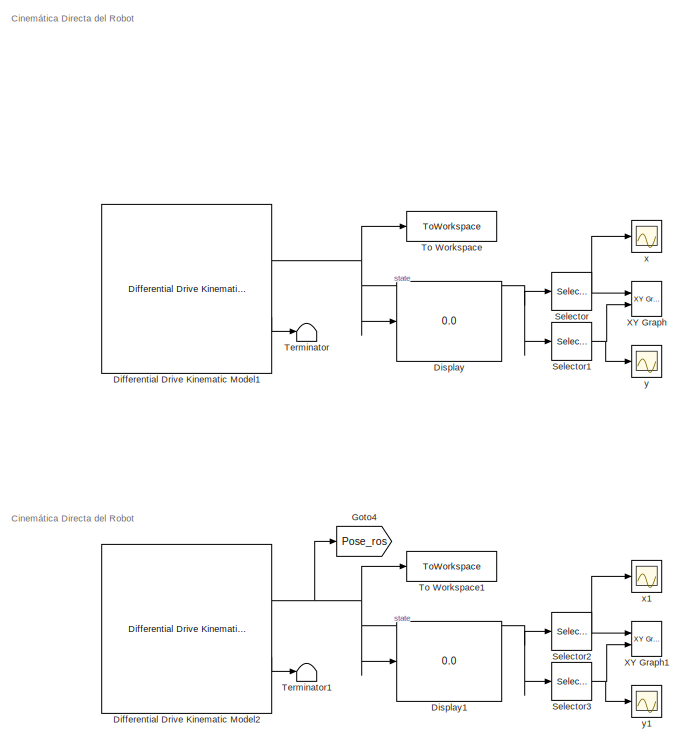
[diagram: root canvas - part 1/3, top right region]
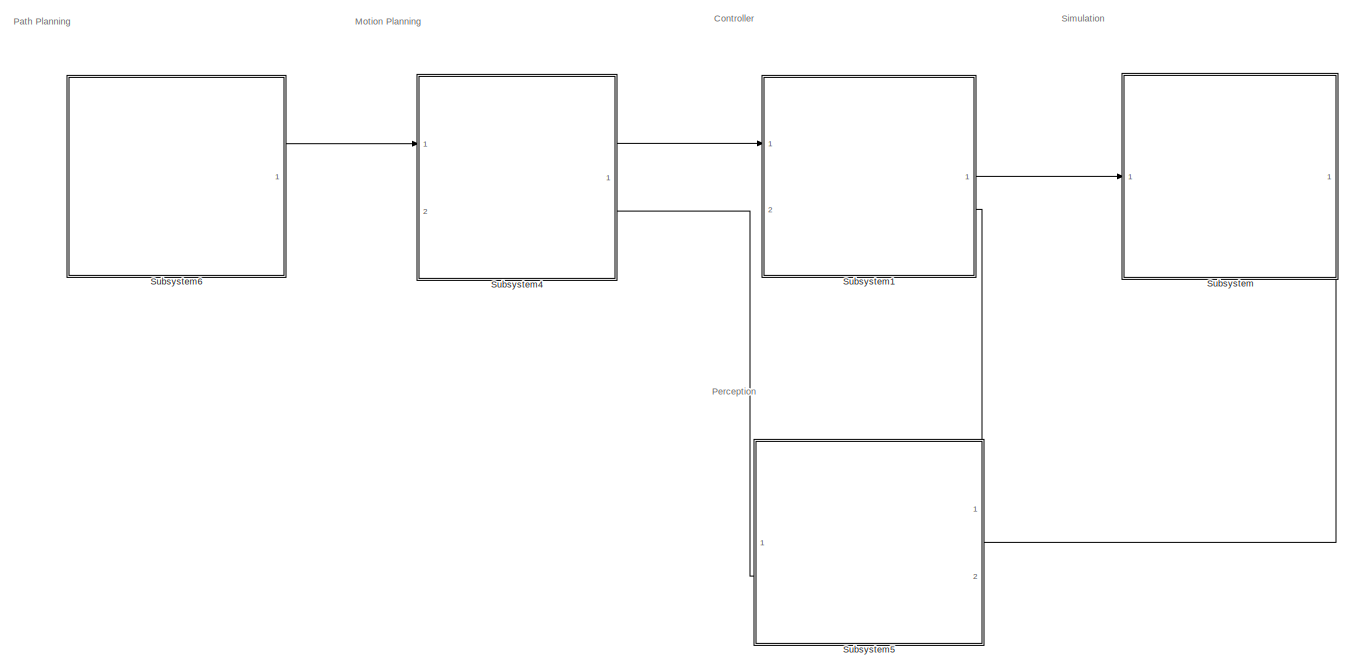
[diagram: root canvas - part 2/3, middle left region]
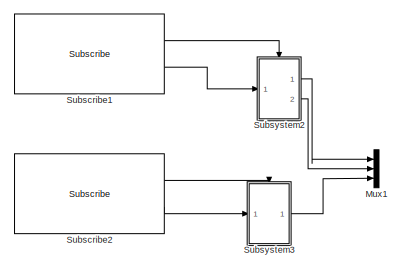
[diagram: root canvas - part 3/3, bottom right region]
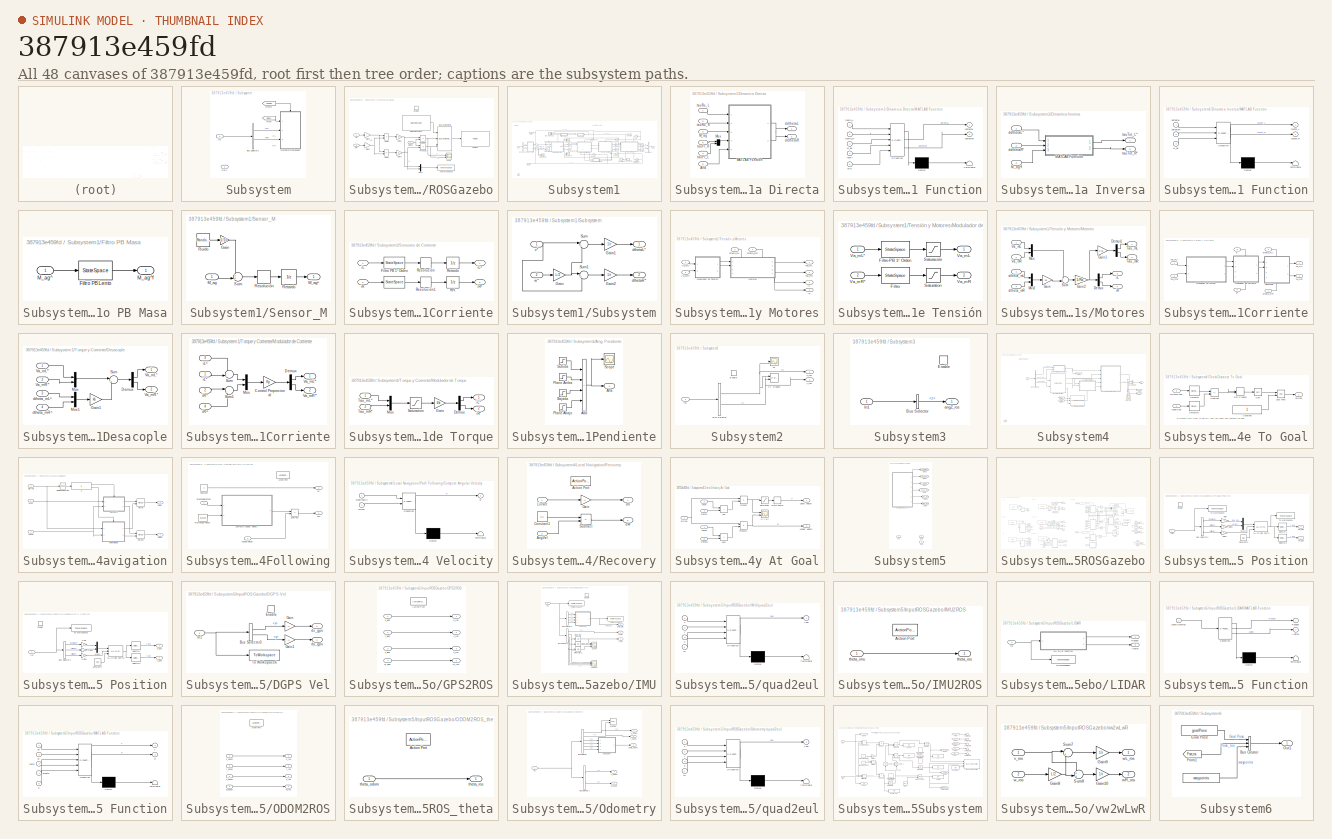
[diagram: thumbnail index - all 48 canvases of the model, root first then tree order]
MODEL slx_387913e459fd
KIND model
CONFIG AbsTol = auto
CONFIG EnableMultiTasking = off
CONFIG FixedStep = 0.01
CONFIG MaxStep = auto
CONFIG MinStep = auto
CONFIG RelTol = 1e-3
CONFIG SampleTimeConstraint = Unconstrained
CONFIG SolverName = FixedStepAuto
CONFIG StartTime = 0.0
CONFIG StopTime = inf
BLOCK [Reference] Differential Drive Kinematic Model1  REF=robotmobilelib/Differential Drive Kinematic Model
  Commented = on
  Ports = [2, 2]
  SourceBlock = robotmobilelib/Differential Drive Kinematic Model
  SourceProductBaseCode = RO
  SourceType = Differential Drive Kinematic Model
BLOCK [Reference] Differential Drive Kinematic Model2  REF=robotmobilelib/Differential Drive Kinematic Model
  Commented = on
  Ports = [2, 2]
  SourceBlock = robotmobilelib/Differential Drive Kinematic Model
  SourceProductBaseCode = RO
  SourceType = Differential Drive Kinematic Model
BLOCK [Display] Display
  Commented = on
  Decimation = 1
  Ports = [1]
BLOCK [Display] Display1
  Commented = on
  Decimation = 1
  Ports = [1]
BLOCK [Goto] Goto4
  Commented = on
  GotoTag = Pose_ros
BLOCK [Mux] Mux1
  Commented = on
  DisplayOption = bar
  Inputs = 3
  Ports = [3, 1]
BLOCK [Selector] Selector
  Commented = on
  IndexOptions = Index vector (dialog)
  Indices = [1]
  InputPortWidth = 3
  OutputSizes = 1
  Ports = [1, 1]
BLOCK [Selector] Selector1
  Commented = on
  IndexOptions = Index vector (dialog)
  Indices = [2]
  InputPortWidth = 3
  OutputSizes = 1
  Ports = [1, 1]
BLOCK [Selector] Selector2
  Commented = on
  IndexOptions = Index vector (dialog)
  Indices = [1]
  InputPortWidth = 3
  OutputSizes = 1
  Ports = [1, 1]
BLOCK [Selector] Selector3
  Commented = on
  IndexOptions = Index vector (dialog)
  Indices = [2]
  InputPortWidth = 3
  OutputSizes = 1
  Ports = [1, 1]
BLOCK [Reference] Subscribe1  REF=ros2lib/Subscribe  (lib defined in slx_3c1549211f48)
  Commented = on
  Ports = [0, 2]
  SourceBlock = ros2lib/Subscribe
  SourceProductBaseCode = RR
  SourceType = ROS2 Subscribe
BLOCK [Reference] Subscribe2  REF=ros2lib/Subscribe  (lib defined in slx_3c1549211f48)
  Commented = on
  Ports = [0, 2]
  SourceBlock = ros2lib/Subscribe
  SourceProductBaseCode = RR
  SourceType = ROS2 Subscribe
BLOCK [SubSystem] Subsystem
  PortSchema = {"entries":[{"content":{"sides":[{"content":{"connectorIds":["In1"]},"type":"ConnectorPlacement.EquallySpacedRectSide","uuid":"273e7eb3-3d1c-4843-aace-07e5779ada44"},{"content":{"connectorIds":[],"side":"RIGHT"},"type":"ConnectorPlacement.EquallySpacedRectSide","uuid":"0ce8f36d-1762-4e21-817b-fb4bacc71d23"},{"content":{"connectorIds":[],"side":"TOP"},"type":"ConnectorPlacement.EquallySpacedRectSid...<+384ch>
  Ports = [1, 1]
  RequestExecContextInheritance = off
BLOCK [BusSelector] Subsystem/Bus Selector1
  OutputSignals = wL,wR
  Ports = [1, 2]
BLOCK [From] Subsystem/From
  GotoTag = atGoal
  TagVisibility = global
BLOCK [From] Subsystem/From8
  GotoTag = newMsg
  TagVisibility = global
BLOCK [Inport] Subsystem/In1
BLOCK [Outport] Subsystem/Out1
BLOCK [SubSystem] Subsystem/OutputROSGazebo
  Ports = [3, 0, 1]
  RequestExecContextInheritance = off
BLOCK [Reference] Subsystem/OutputROSGazebo/Blank Message1  REF=ros2lib/Blank Message  (lib defined in slx_3c1549211f48)
  Ports = [0, 1]
  SourceBlock = ros2lib/Blank Message
  SourceProductBaseCode = RR
  SourceType = ROS2 Blank Message
BLOCK [BusAssignment] Subsystem/OutputROSGazebo/Bus Assignment1
  AssignedSignals = linear.x,angular.z
  Ports = [3, 1]
BLOCK [EnablePort] Subsystem/OutputROSGazebo/Enable
  Ports = []
BLOCK [Gain] Subsystem/OutputROSGazebo/Gain1
  Gain = r
BLOCK [Gain] Subsystem/OutputROSGazebo/Gain2
  Gain = r
BLOCK [Gain] Subsystem/OutputROSGazebo/Gain3
  Gain = 1/2
BLOCK [Gain] Subsystem/OutputROSGazebo/Gain4
  Gain = 1/L
BLOCK [Mux] Subsystem/OutputROSGazebo/Mux4
  DisplayOption = bar
  Inputs = 2
  Ports = [2, 1]
BLOCK [Product] Subsystem/OutputROSGazebo/Product
  Ports = [2, 1]
BLOCK [Product] Subsystem/OutputROSGazebo/Product1
  Ports = [2, 1]
BLOCK [Reference] Subsystem/OutputROSGazebo/Publish1  REF=ros2lib/Publish  (lib defined in slx_3c1549211f48)
  Ports = [1]
  SourceBlock = ros2lib/Publish
  SourceProductBaseCode = RR
  SourceType = ROS2 Publish
BLOCK [Sum] Subsystem/OutputROSGazebo/Sum3
  IconShape = rectangular
  Ports = [2, 1]
BLOCK [Sum] Subsystem/OutputROSGazebo/Sum4
  IconShape = rectangular
  Inputs = -+
  Ports = [2, 1]
BLOCK [ToWorkspace] Subsystem/OutputROSGazebo/To Workspace3
  FixptAsFi = on
  MaxDataPoints = inf
  Ports = [1]
  SampleTime = -1
  VariableName = VyW
BLOCK [Inport] Subsystem/OutputROSGazebo/atGoal
BLOCK [Scope] Subsystem/OutputROSGazebo/v vs w
  Floating = off
  NumInputPorts = 2
  Ports = [2]
  ScopeSpecificationString = Simulink.scopes.TimeScopeBlockCfg('CurrentConfiguration', extmgr.ConfigurationSet(extmgr.Configuration('Core','General UI',true),extmgr.Configuration('Core','Source UI',true),extmgr.Configuration('Sources','WiredSimulink',true,'DataLoggingVariableName','ScopeData3'),extmgr.Configuration('Visuals','Time Domain',true,'SerializedDisplays',{struct('MinYLimReal','-0.78737','MaxYLimReal','1.56356','YLab...<+1446ch>
BLOCK [Inport] Subsystem/OutputROSGazebo/wL
  Port = 2
BLOCK [Inport] Subsystem/OutputROSGazebo/wR
  Port = 3
BLOCK [SubSystem] Subsystem1
  PortSchema = {"entries":[{"content":{"sides":[{"content":{"connectorIds":["In1"]},"type":"ConnectorPlacement.EquallySpacedRectSide","uuid":"7cc506d6-0df9-4dcf-87be-1a8fc33368cf"},{"content":{"connectorIds":["Out1"],"side":"RIGHT"},"type":"ConnectorPlacement.EquallySpacedRectSide","uuid":"9bee288a-7334-4d77-9b50-8b8395b9bab7"},{"content":{"connectorIds":[],"side":"TOP"},"type":"ConnectorPlacement.EquallySpacedR...<+389ch>
  Ports = [2, 1]
  RequestExecContextInheritance = off
BLOCK [BusCreator] Subsystem1/Bus Creator
  DisplayOption = bar
  InheritFromInputs = on
  Inputs = 2
  Ports = [2, 1]
BLOCK [BusSelector] Subsystem1/Bus Selector
  OutputSignals = v*,w*
  Ports = [1, 2]
BLOCK [Gain] Subsystem1/Coef. Fricción Viscosa
  Gain = B
BLOCK [Constant] Subsystem1/Constant
  NameLocation = top
  Value = m_uva
BLOCK [SubSystem] Subsystem1/Dinamica Directa
  PortSchema = {"entries":[{"content":{"sides":[{"content":{"connectorIds":["In1","In2"]},"type":"ConnectorPlacement.EquallySpacedRectSide","uuid":"7724baec-8741-4c83-ab66-71b62264b439"},{"content":{"connectorIds":["Out1","Out2"],"side":"RIGHT"},"type":"ConnectorPlacement.EquallySpacedRectSide","uuid":"83de1d79-8442-4360-ae36-8e267c42d9e7"},{"content":{"connectorIds":["In3","In4"],"side":"TOP"},"type":"Connector...<+419ch>
  Ports = [6, 2]
  RequestExecContextInheritance = off
BLOCK [Inport] Subsystem1/Dinamica Directa/Alfa
  Port = 5
BLOCK [SubSystem] Subsystem1/Dinamica Directa/MATLAB Function
  ErrorFcn = Stateflow.Translate.translate
  PermitHierarchicalResolution = ExplicitOnly
  Ports = [5, 2]
  RequestExecContextInheritance = off
  SFBlockType = MATLAB Function
  TreatAsAtomicUnit = on
BLOCK [Demux] Subsystem1/Dinamica Directa/MATLAB Function/ Demux 
  Outputs = 1
  Ports = [1, 1]
BLOCK [S-Function] Subsystem1/Dinamica Directa/MATLAB Function/ SFunction 
  EnableBusSupport = on
  FunctionName = sf_sfun
  PortCounts = [5 3]
  Ports = [5, 3]
  SFcnIsStateOwnerBlock = off
  SFunctionDeploymentMode = off
  Tag = Stateflow S-Function 1
BLOCK [Terminator] Subsystem1/Dinamica Directa/MATLAB Function/ Terminator 
BLOCK [Inport] Subsystem1/Dinamica Directa/MATLAB Function/M_ag
  Port = 3
BLOCK [Inport] Subsystem1/Dinamica Directa/MATLAB Function/alfa
  Port = 5
BLOCK [Outport] Subsystem1/Dinamica Directa/MATLAB Function/ddthetaL
BLOCK [Outport] Subsystem1/Dinamica Directa/MATLAB Function/ddthetaR
  Port = 2
BLOCK [Inport] Subsystem1/Dinamica Directa/MATLAB Function/tauFr
  Port = 4
BLOCK [Inport] Subsystem1/Dinamica Directa/MATLAB Function/tauRu_L
BLOCK [Inport] Subsystem1/Dinamica Directa/MATLAB Function/tauRu_R
  Port = 2
BLOCK [Inport] Subsystem1/Dinamica Directa/M_ag
  Port = 3
BLOCK [Mux] Subsystem1/Dinamica Directa/Mux
  DisplayOption = bar
  Inputs = 2
  Ports = [2, 1]
BLOCK [Outport] Subsystem1/Dinamica Directa/ddthetaL
  NameLocation = top
BLOCK [Outport] Subsystem1/Dinamica Directa/ddthetaR
  Port = 2
BLOCK [Inport] Subsystem1/Dinamica Directa/tauFr_L
  Port = 4
BLOCK [Inport] Subsystem1/Dinamica Directa/tauFr_R
  Port = 6
BLOCK [Inport] Subsystem1/Dinamica Directa/tauRu_L
BLOCK [Inport] Subsystem1/Dinamica Directa/tauRu_R
  Port = 2
BLOCK [SubSystem] Subsystem1/Dinamica Inversa
  PortSchema = {"entries":[{"content":{"sides":[{"content":{"connectorIds":["In1","In2"]},"type":"ConnectorPlacement.EquallySpacedRectSide","uuid":"0faee1a4-a132-48bd-bc38-20a06c869d2e"},{"content":{"connectorIds":["Out1","Out2"],"side":"RIGHT"},"type":"ConnectorPlacement.EquallySpacedRectSide","uuid":"c1af3771-28d7-4ef6-a87a-ceeaee1edff6"},{"content":{"connectorIds":["In3"],"side":"TOP"},"type":"ConnectorPlacem...<+258ch>
  Ports = [3, 2]
  RequestExecContextInheritance = off
BLOCK [SubSystem] Subsystem1/Dinamica Inversa/MATLAB Function
  ErrorFcn = Stateflow.Translate.translate
  PermitHierarchicalResolution = ExplicitOnly
  Ports = [3, 2]
  RequestExecContextInheritance = off
  SFBlockType = MATLAB Function
  TreatAsAtomicUnit = on
BLOCK [Demux] Subsystem1/Dinamica Inversa/MATLAB Function/ Demux 
  Outputs = 1
  Ports = [1, 1]
BLOCK [S-Function] Subsystem1/Dinamica Inversa/MATLAB Function/ SFunction 
  EnableBusSupport = on
  FunctionName = sf_sfun
  PortCounts = [3 3]
  Ports = [3, 3]
  SFcnIsStateOwnerBlock = off
  SFunctionDeploymentMode = off
  Tag = Stateflow S-Function 6
BLOCK [Terminator] Subsystem1/Dinamica Inversa/MATLAB Function/ Terminator 
BLOCK [Inport] Subsystem1/Dinamica Inversa/MATLAB Function/M_ag
  Port = 3
BLOCK [Inport] Subsystem1/Dinamica Inversa/MATLAB Function/ddthetaL
BLOCK [Inport] Subsystem1/Dinamica Inversa/MATLAB Function/ddthetaR
  Port = 2
BLOCK [Outport] Subsystem1/Dinamica Inversa/MATLAB Function/tauTot_L
BLOCK [Outport] Subsystem1/Dinamica Inversa/MATLAB Function/tauTot_R
  Port = 2
BLOCK [Inport] Subsystem1/Dinamica Inversa/M_ag^f
  Port = 3
BLOCK [Inport] Subsystem1/Dinamica Inversa/ddthetaL*
  NameLocation = top
BLOCK [Inport] Subsystem1/Dinamica Inversa/ddthetaR*
  Port = 2
BLOCK [Outport] Subsystem1/Dinamica Inversa/tauTot_L*
  NameLocation = top
BLOCK [Outport] Subsystem1/Dinamica Inversa/tauTot_R*
  Port = 2
BLOCK [Scope] Subsystem1/Errores dtheta
  Floating = off
  NumInputPorts = 2
  Ports = [2]
  ScopeSpecificationString = Simulink.scopes.TimeScopeBlockCfg('CurrentConfiguration', extmgr.ConfigurationSet(extmgr.Configuration('Core','General UI',true,'FigureColor',[1 1 1]),extmgr.Configuration('Core','Source UI',true),extmgr.Configuration('Sources','WiredSimulink',true,'DataLoggingVariableName','ScopeData3'),extmgr.Configuration('Visuals','Time Domain',true,'SerializedDisplays',{struct('MinYLimReal','-3.13272','MaxYLi...<+2332ch>
BLOCK [SubSystem] Subsystem1/Filtro PB Masa
  Ports = [1, 1]
  RequestExecContextInheritance = off
BLOCK [StateSpace] Subsystem1/Filtro PB Masa/Filtro PB Lento
  A = [-1/2]
  B = [1]
  C = [1/2]
  D = [0]
  InitialCondition = 0
  Ports = [1, 1]
BLOCK [Inport] Subsystem1/Filtro PB Masa/M_ag^
BLOCK [Outport] Subsystem1/Filtro PB Masa/M_ag^f
BLOCK [From] Subsystem1/From6
  GotoTag = wL_ros
  TagVisibility = global
BLOCK [From] Subsystem1/From7
  GotoTag = wR_ros
  TagVisibility = global
BLOCK [Gain] Subsystem1/Gain
  Gain = B
BLOCK [Inport] Subsystem1/In1
BLOCK [Inport] Subsystem1/In2
  Port = 2
BLOCK [Integrator] Subsystem1/Integrator
  Ports = [1, 1]
BLOCK [Integrator] Subsystem1/Integrator1
  Ports = [1, 1]
BLOCK [Gain] Subsystem1/Inv. Red. L
  Gain = n*efic_red
BLOCK [Gain] Subsystem1/Inv. Red. R
  Gain = n*efic_red
BLOCK [Gain] Subsystem1/Inversa Reductor_L
  Gain = 1/(n*efic_red)
BLOCK [Gain] Subsystem1/Inversa Reductor_R
  Gain = 1/(n*efic_red)
BLOCK [Scope] Subsystem1/Masa Agregada
  Floating = off
  NumInputPorts = 3
  Ports = [3]
  ScopeSpecificationString = Simulink.scopes.TimeScopeBlockCfg('CurrentConfiguration', extmgr.ConfigurationSet(extmgr.Configuration('Core','General UI',true,'FigureColor',[1 1 1]),extmgr.Configuration('Core','Source UI',true),extmgr.Configuration('Sources','WiredSimulink',true,'DataLoggingVariableName','ScopeData6'),extmgr.Configuration('Visuals','Time Domain',true,'SerializedDisplays',{struct('MinYLimReal','-2.60667','MaxYLi...<+2297ch>
BLOCK [Outport] Subsystem1/Out1
BLOCK [Reference] Subsystem1/PID Controller3  REF=pid_lib/PID Controller
  Ports = [1, 1]
  SourceBlock = pid_lib/PID Controller
  SourceProductBaseCode = SL
  SourceType = PID 1dof
BLOCK [Reference] Subsystem1/PID Controller4  REF=pid_lib/PID Controller
  Ports = [1, 1]
  SourceBlock = pid_lib/PID Controller
  SourceProductBaseCode = SL
  SourceType = PID 1dof
BLOCK [Scope] Subsystem1/Pendiente
  Floating = off
  NumInputPorts = 1
  Ports = [1]
  ScopeSpecificationString = Simulink.scopes.TimeScopeBlockCfg('CurrentConfiguration', extmgr.ConfigurationSet(extmgr.Configuration('Core','General UI',true,'FigureColor',[1 1 1]),extmgr.Configuration('Core','Source UI',true),extmgr.Configuration('Sources','WiredSimulink',true,'DataLoggingVariableName','ScopeData5'),extmgr.Configuration('Visuals','Time Domain',true,'SerializedDisplays',{struct('MinYLimReal','-37.5','MaxYLimRe...<+2255ch>
BLOCK [Gain] Subsystem1/Reduc. L
  Gain = 1/(n*efic_red)
BLOCK [Gain] Subsystem1/Reduc. R
  Gain = 1/(n*efic_red)
BLOCK [Gain] Subsystem1/Reductor_L
  Gain = n*efic_red
BLOCK [Gain] Subsystem1/Reductor_R
  Gain = n*efic_red
BLOCK [SubSystem] Subsystem1/Sensor_M
  Ports = [1, 1]
  RequestExecContextInheritance = off
BLOCK [Gain] Subsystem1/Sensor_M/Gain
  Gain = 1/10
BLOCK [Inport] Subsystem1/Sensor_M/M_ag
BLOCK [Outport] Subsystem1/Sensor_M/M_ag^
BLOCK [Quantizer] Subsystem1/Sensor_M/Resolución
  LinearizeAsGain = off
  QuantizationInterval = 20/3000
BLOCK [UnitDelay] Subsystem1/Sensor_M/Retardo
  HasFrameUpgradeWarning = on
  SampleTime = -1
BLOCK [RandomNumber] Subsystem1/Sensor_M/Ruido
  SampleTime = 0.01
  Variance = 5
BLOCK [Sum] Subsystem1/Sensor_M/Sum
  Inputs = ++|
  Ports = [2, 1]
BLOCK [SubSystem] Subsystem1/Sensores de Corriente
  Ports = [2, 2]
  RequestExecContextInheritance = off
BLOCK [StateSpace] Subsystem1/Sensores de Corriente/ 
  A = [-1/1000]
  B = [1]
  C = [1/1000]
  D = [0]
  InitialCondition = 0
  Ports = [1, 1]
BLOCK [StateSpace] Subsystem1/Sensores de Corriente/Filtro PB 1° Orden
  A = [-1/1000]
  B = [1]
  C = [1/1000]
  D = [0]
  InitialCondition = 0
  Ports = [1, 1]
BLOCK [Quantizer] Subsystem1/Sensores de Corriente/Resolución
  LinearizeAsGain = off
  QuantizationInterval = 0.01
BLOCK [Quantizer] Subsystem1/Sensores de Corriente/Resolución1
  LinearizeAsGain = off
  QuantizationInterval = 0.01
BLOCK [UnitDelay] Subsystem1/Sensores de Corriente/Ret.
  HasFrameUpgradeWarning = on
  SampleTime = -1
BLOCK [UnitDelay] Subsystem1/Sensores de Corriente/Retardo
  HasFrameUpgradeWarning = on
  SampleTime = -1
BLOCK [Inport] Subsystem1/Sensores de Corriente/iL
BLOCK [Outport] Subsystem1/Sensores de Corriente/iL^
BLOCK [Inport] Subsystem1/Sensores de Corriente/iR
  Port = 2
BLOCK [Outport] Subsystem1/Sensores de Corriente/iR^
  Port = 2
BLOCK [SubSystem] Subsystem1/Subsystem
  Ports = [2, 2]
  RequestExecContextInheritance = off
BLOCK [Gain] Subsystem1/Subsystem/Gain
  Gain = L/2
BLOCK [Gain] Subsystem1/Subsystem/Gain1
  Gain = 1/r
BLOCK [Gain] Subsystem1/Subsystem/Gain2
  Gain = 1/r
BLOCK [Sum] Subsystem1/Subsystem/Sum
  Inputs = |+-
  Ports = [2, 1]
BLOCK [Sum] Subsystem1/Subsystem/Sum1
  Inputs = |++
  Ports = [2, 1]
BLOCK [Outport] Subsystem1/Subsystem/dthetaL*
BLOCK [Outport] Subsystem1/Subsystem/dthetaR*
  Port = 2
BLOCK [Inport] Subsystem1/Subsystem/v*
BLOCK [Inport] Subsystem1/Subsystem/w*
  Port = 2
BLOCK [Sum] Subsystem1/Sum
  Inputs = -+|
  Ports = [2, 1]
BLOCK [Sum] Subsystem1/Sum1
  Inputs = |+-
  Ports = [2, 1]
BLOCK [SubSystem] Subsystem1/Tensión y Motores
  PortSchema = {"entries":[{"content":{"sides":[{"content":{"connectorIds":["In1","In2"]},"type":"ConnectorPlacement.EquallySpacedRectSide","uuid":"3ebe32f1-671c-48b5-a96d-67422499d9d8"},{"content":{"connectorIds":["Out1","Out2"],"side":"RIGHT"},"type":"ConnectorPlacement.EquallySpacedRectSide","uuid":"07bd6e19-f9f7-4708-a097-3a0981aaf918"},{"content":{"connectorIds":["In3"],"side":"TOP"},"type":"ConnectorPlacem...<+421ch>
  Ports = [4, 4]
  RequestExecContextInheritance = off
BLOCK [SubSystem] Subsystem1/Tensión y Motores/Modulador de Tensión
  Ports = [2, 2]
  RequestExecContextInheritance = off
BLOCK [StateSpace] Subsystem1/Tensión y Motores/Modulador de Tensión/Filtro
  A = [-1/t_lpf]
  B = [1]
  C = [1/t_lpf]
  D = [0]
  InitialCondition = 0
  Ports = [1, 1]
BLOCK [StateSpace] Subsystem1/Tensión y Motores/Modulador de Tensión/Filtro PB 1° Orden
  A = [-1/t_lpf]
  B = [1]
  C = [1/t_lpf]
  D = [0]
  InitialCondition = 0
  Ports = [1, 1]
BLOCK [Saturate] Subsystem1/Tensión y Motores/Modulador de Tensión/Saturación
  LowerLimit = -Vnom
  UpperLimit = Vnom
BLOCK [Saturate] Subsystem1/Tensión y Motores/Modulador de Tensión/Saturation
  LowerLimit = -Vnom
  UpperLimit = Vnom
BLOCK [Outport] Subsystem1/Tensión y Motores/Modulador de Tensión/Va_mL
BLOCK [Inport] Subsystem1/Tensión y Motores/Modulador de Tensión/Va_mL*
BLOCK [Outport] Subsystem1/Tensión y Motores/Modulador de Tensión/Va_mR
  Port = 2
BLOCK [Inport] Subsystem1/Tensión y Motores/Modulador de Tensión/Va_mR*
  Port = 2
BLOCK [SubSystem] Subsystem1/Tensión y Motores/Motores
  PortSchema = {"entries":[{"content":{"sides":[{"content":{"connectorIds":["In1","In2"]},"type":"ConnectorPlacement.EquallySpacedRectSide","uuid":"3ebe32f1-671c-48b5-a96d-67422499d9d8"},{"content":{"connectorIds":["Out1","Out2"],"side":"RIGHT"},"type":"ConnectorPlacement.EquallySpacedRectSide","uuid":"07bd6e19-f9f7-4708-a097-3a0981aaf918"},{"content":{"connectorIds":["In3","In4"],"side":"TOP"},"type":"Connector...<+421ch>
  Ports = [4, 4]
  RequestExecContextInheritance = off
BLOCK [Demux] Subsystem1/Tensión y Motores/Motores/Demux
  Outputs = 2
  Ports = [1, 2]
BLOCK [Demux] Subsystem1/Tensión y Motores/Motores/Demux1
  Outputs = 2
  Ports = [1, 2]
BLOCK [Gain] Subsystem1/Tensión y Motores/Motores/Gain
  Gain = kb
BLOCK [Gain] Subsystem1/Tensión y Motores/Motores/Gain1
  Gain = 0.25
BLOCK [Gain] Subsystem1/Tensión y Motores/Motores/Gain2
  Gain = 1/Ra
BLOCK [Mux] Subsystem1/Tensión y Motores/Motores/Mux
  DisplayOption = bar
  Inputs = 2
  Ports = [2, 1]
BLOCK [Mux] Subsystem1/Tensión y Motores/Motores/Mux1
  DisplayOption = bar
  Inputs = 2
  Ports = [2, 1]
BLOCK [Sum] Subsystem1/Tensión y Motores/Motores/Sum
  Inputs = +-|
  Ports = [2, 1]
BLOCK [Outport] Subsystem1/Tensión y Motores/Motores/Tau_mL
BLOCK [Outport] Subsystem1/Tensión y Motores/Motores/Tau_mR
  Port = 2
BLOCK [Inport] Subsystem1/Tensión y Motores/Motores/Va_mL
BLOCK [Inport] Subsystem1/Tensión y Motores/Motores/Va_mR
  Port = 2
BLOCK [Inport] Subsystem1/Tensión y Motores/Motores/dtheta_mL
  Port = 3
BLOCK [Inport] Subsystem1/Tensión y Motores/Motores/dtheta_mR
  Port = 4
BLOCK [Outport] Subsystem1/Tensión y Motores/Motores/iL
  Port = 3
BLOCK [Outport] Subsystem1/Tensión y Motores/Motores/iR
  Port = 4
BLOCK [Outport] Subsystem1/Tensión y Motores/Tau_mL
BLOCK [Outport] Subsystem1/Tensión y Motores/Tau_mR
  Port = 2
BLOCK [Inport] Subsystem1/Tensión y Motores/Va_mL*
BLOCK [Inport] Subsystem1/Tensión y Motores/Va_mR*
  Port = 2
BLOCK [Inport] Subsystem1/Tensión y Motores/dtheta_mL
  Port = 3
BLOCK [Inport] Subsystem1/Tensión y Motores/dtheta_mR
  Port = 4
BLOCK [Outport] Subsystem1/Tensión y Motores/iL
  Port = 3
BLOCK [Outport] Subsystem1/Tensión y Motores/iR
  Port = 4
BLOCK [SubSystem] Subsystem1/Torque y Corriente
  PortSchema = {"entries":[{"content":{"sides":[{"content":{"connectorIds":["In1","In2"]},"type":"ConnectorPlacement.EquallySpacedRectSide","uuid":"fc3b99ab-82cb-4435-a104-343013dc5d5c"},{"content":{"connectorIds":["Out1","Out2"],"side":"RIGHT"},"type":"ConnectorPlacement.EquallySpacedRectSide","uuid":"5ceb6380-9217-497c-9055-30e7b1371d6a"},{"content":{"connectorIds":["In3"],"side":"TOP"},"type":"ConnectorPlacem...<+419ch>
  Ports = [6, 2]
  RequestExecContextInheritance = off
BLOCK [SubSystem] Subsystem1/Torque y Corriente/Desacople
  PortSchema = {"entries":[{"content":{"sides":[{"content":{"connectorIds":["In1","In2"]},"type":"ConnectorPlacement.EquallySpacedRectSide","uuid":"3fca05c4-9944-4d1c-bfbf-1c7b323f5576"},{"content":{"connectorIds":["Out1","Out2"],"side":"RIGHT"},"type":"ConnectorPlacement.EquallySpacedRectSide","uuid":"f7a735a9-0b51-4d0f-a212-abe97905570a"},{"content":{"connectorIds":["In3"],"side":"TOP"},"type":"ConnectorPlacem...<+407ch>
  Ports = [4, 2]
  RequestExecContextInheritance = off
BLOCK [Demux] Subsystem1/Torque y Corriente/Desacople/Demux
  Outputs = 2
  Ports = [1, 2]
BLOCK [Gain] Subsystem1/Torque y Corriente/Desacople/Gain1
  Gain = kb
BLOCK [Mux] Subsystem1/Torque y Corriente/Desacople/Mux
  DisplayOption = bar
  Inputs = 2
  Ports = [2, 1]
BLOCK [Mux] Subsystem1/Torque y Corriente/Desacople/Mux1
  DisplayOption = bar
  Inputs = 2
  Ports = [2, 1]
BLOCK [Sum] Subsystem1/Torque y Corriente/Desacople/Sum
  Inputs = |++
  Ports = [2, 1]
BLOCK [Outport] Subsystem1/Torque y Corriente/Desacople/Va_mL*
BLOCK [Inport] Subsystem1/Torque y Corriente/Desacople/Va_mL*'
BLOCK [Outport] Subsystem1/Torque y Corriente/Desacople/Va_mR*
  Port = 2
BLOCK [Inport] Subsystem1/Torque y Corriente/Desacople/Va_mR*'
  Port = 2
BLOCK [Inport] Subsystem1/Torque y Corriente/Desacople/dtheta_mL^
  Port = 3
BLOCK [Inport] Subsystem1/Torque y Corriente/Desacople/dtheta_mR^
  Port = 4
BLOCK [SubSystem] Subsystem1/Torque y Corriente/Modulador de Corriente
  PortSchema = {"entries":[{"content":{"sides":[{"content":{"connectorIds":["In1","In2"]},"type":"ConnectorPlacement.EquallySpacedRectSide","uuid":"fa4e6480-e76c-4c1d-bc6f-319c8a12ca48"},{"content":{"connectorIds":["Out1","Out2"],"side":"RIGHT"},"type":"ConnectorPlacement.EquallySpacedRectSide","uuid":"cb01f017-a7ce-4c54-8f9c-222b4f50ca72"},{"content":{"connectorIds":["In3"],"side":"TOP"},"type":"ConnectorPlacem...<+407ch>
  Ports = [4, 2]
  RequestExecContextInheritance = off
BLOCK [Gain] Subsystem1/Torque y Corriente/Modulador de Corriente/Control Proporcional
  Gain = Rp
BLOCK [Demux] Subsystem1/Torque y Corriente/Modulador de Corriente/Demux
  Outputs = 2
  Ports = [1, 2]
BLOCK [Mux] Subsystem1/Torque y Corriente/Modulador de Corriente/Mux
  DisplayOption = bar
  Inputs = 2
  Ports = [2, 1]
BLOCK [Sum] Subsystem1/Torque y Corriente/Modulador de Corriente/Sum
  Inputs = -+|
  Ports = [2, 1]
BLOCK [Sum] Subsystem1/Torque y Corriente/Modulador de Corriente/Sum1
  Inputs = |+-
  Ports = [2, 1]
BLOCK [Outport] Subsystem1/Torque y Corriente/Modulador de Corriente/Va_mL*'
BLOCK [Outport] Subsystem1/Torque y Corriente/Modulador de Corriente/Va_mR*'
  Port = 2
BLOCK [Inport] Subsystem1/Torque y Corriente/Modulador de Corriente/iL* 
BLOCK [Inport] Subsystem1/Torque y Corriente/Modulador de Corriente/iL^
  Port = 3
BLOCK [Inport] Subsystem1/Torque y Corriente/Modulador de Corriente/iR*
  Port = 2
BLOCK [Inport] Subsystem1/Torque y Corriente/Modulador de Corriente/iR^
  Port = 4
BLOCK [SubSystem] Subsystem1/Torque y Corriente/Modulador de Torque
  Ports = [2, 2]
  RequestExecContextInheritance = off
BLOCK [Demux] Subsystem1/Torque y Corriente/Modulador de Torque/Demux
  Outputs = 2
  Ports = [1, 2]
BLOCK [Gain] Subsystem1/Torque y Corriente/Modulador de Torque/Gain
  Gain = 1/kt
BLOCK [Mux] Subsystem1/Torque y Corriente/Modulador de Torque/Mux
  DisplayOption = bar
  Inputs = 2
  Ports = [2, 1]
BLOCK [Saturate] Subsystem1/Torque y Corriente/Modulador de Torque/Saturation
  LowerLimit = -tau_max
  UpperLimit = tau_max
BLOCK [Inport] Subsystem1/Torque y Corriente/Modulador de Torque/Tau_mL*
BLOCK [Inport] Subsystem1/Torque y Corriente/Modulador de Torque/Tau_mR*
  Port = 2
BLOCK [Outport] Subsystem1/Torque y Corriente/Modulador de Torque/iL*
BLOCK [Outport] Subsystem1/Torque y Corriente/Modulador de Torque/iR*
  Port = 2
BLOCK [Inport] Subsystem1/Torque y Corriente/Tau_mL*
BLOCK [Inport] Subsystem1/Torque y Corriente/Tau_mR*
  Port = 2
BLOCK [Outport] Subsystem1/Torque y Corriente/Va_mL*
BLOCK [Outport] Subsystem1/Torque y Corriente/Va_mR*
  Port = 2
BLOCK [Inport] Subsystem1/Torque y Corriente/dtheta_mL^
  Port = 3
BLOCK [Inport] Subsystem1/Torque y Corriente/dtheta_mR^
  Port = 4
BLOCK [Inport] Subsystem1/Torque y Corriente/iL^
  Port = 6
BLOCK [Inport] Subsystem1/Torque y Corriente/iR^
  Port = 5
BLOCK [Scope] Subsystem1/Torques Ru L
  Floating = off
  NumInputPorts = 2
  Ports = [2]
  ScopeSpecificationString = Simulink.scopes.TimeScopeBlockCfg('CurrentConfiguration', extmgr.ConfigurationSet(extmgr.Configuration('Core','General UI',true,'FigureColor',[1 1 1]),extmgr.Configuration('Core','Source UI',true),extmgr.Configuration('Sources','WiredSimulink',true,'DataLoggingVariableName','ScopeData2'),extmgr.Configuration('Visuals','Time Domain',true,'SerializedDisplays',{struct('MinYLimReal','-259.57097','MaxY...<+2388ch>
BLOCK [Scope] Subsystem1/Torques Ru R
  Floating = off
  NumInputPorts = 2
  Ports = [2]
  ScopeSpecificationString = Simulink.scopes.TimeScopeBlockCfg('CurrentConfiguration', extmgr.ConfigurationSet(extmgr.Configuration('Core','General UI',true,'FigureColor',[1 1 1]),extmgr.Configuration('Core','Source UI',true),extmgr.Configuration('Sources','WiredSimulink',true,'DataLoggingVariableName','ScopeData1'),extmgr.Configuration('Visuals','Time Domain',true,'SerializedDisplays',{struct('MinYLimReal','-285.96726','MaxY...<+2414ch>
BLOCK [SubSystem] Subsystem1/Áng. Pendiente
  Ports = [0, 1]
  RequestExecContextInheritance = off
BLOCK [Sum] Subsystem1/Áng. Pendiente/Add
  IconShape = rectangular
  Inputs = ++++
  Ports = [4, 1]
BLOCK [Outport] Subsystem1/Áng. Pendiente/Alfa
BLOCK [Step] Subsystem1/Áng. Pendiente/Bajada
  After = -30
  SampleTime = 0
  Time = 5
BLOCK [Step] Subsystem1/Áng. Pendiente/Plano Abajo
  After = 30
  SampleTime = 0
  Time = 7
BLOCK [Step] Subsystem1/Áng. Pendiente/Plano Arriba
  After = -30
  SampleTime = 0
  Time = 4
BLOCK [Scope] Subsystem1/Áng. Pendiente/Scope
  Floating = off
  NumInputPorts = 1
  Ports = [1]
  ScopeSpecificationString = Simulink.scopes.TimeScopeBlockCfg('CurrentConfiguration', extmgr.ConfigurationSet(extmgr.Configuration('Core','General UI',true,'FigureColor',[1 1 1]),extmgr.Configuration('Core','Source UI',true),extmgr.Configuration('Sources','WiredSimulink',true,'DataLoggingVariableName','ScopeData9'),extmgr.Configuration('Visuals','Time Domain',true,'SerializedDisplays',{struct('MinYLimReal','-3.75','MaxYLimRe...<+1534ch>
BLOCK [Step] Subsystem1/Áng. Pendiente/Subida
  After = 30
  SampleTime = 0
  Time = 2
BLOCK [SubSystem] Subsystem2
  Commented = on
  Ports = [1, 2, 1]
  RequestExecContextInheritance = off
BLOCK [BusSelector] Subsystem2/Bus Selector
  OutputSignals = pose.pose.position.x,pose.pose.position.y
  Ports = [1, 2]
BLOCK [EnablePort] Subsystem2/Enable
  Ports = []
BLOCK [Inport] Subsystem2/In1
BLOCK [Reference] Subsystem2/XY Graph2  REF=simulink/Sinks/XY Graph
  Ports = [2]
  SourceBlock = simulink/Sinks/XY Graph
  SourceProductBaseCode = SL
  SourceType = XY scope.
BLOCK [Scope] Subsystem2/x2
  Floating = off
  NumInputPorts = 1
  Ports = [1]
  ScopeSpecificationString = Simulink.scopes.TimeScopeBlockCfg('CurrentConfiguration', extmgr.ConfigurationSet(extmgr.Configuration('Core','General UI',true),extmgr.Configuration('Core','Source UI',true),extmgr.Configuration('Sources','WiredSimulink',true,'DataLoggingVariableName','ScopeData1'),extmgr.Configuration('Visuals','Time Domain',true,'SerializedDisplays',{struct('MinYLimReal','13.28681','MaxYLimReal','24.29252','YLa...<+1448ch>
BLOCK [Outport] Subsystem2/x_ros
BLOCK [Outport] Subsystem2/y_ros
  Port = 2
BLOCK [SubSystem] Subsystem3
  Commented = on
  Ports = [1, 1, 1]
  RequestExecContextInheritance = off
BLOCK [BusSelector] Subsystem3/Bus Selector
  OutputSignals = angular_velocity.z
  Ports = [1, 1]
BLOCK [EnablePort] Subsystem3/Enable
  Ports = []
BLOCK [Inport] Subsystem3/In1
BLOCK [Outport] Subsystem3/angZ_ros
BLOCK [SubSystem] Subsystem4
  PortSchema = {"entries":[{"content":{"sides":[{"content":{"connectorIds":["In1"]},"type":"ConnectorPlacement.EquallySpacedRectSide","uuid":"4026ad61-f4ec-4a91-9be9-057f2d314736"},{"content":{"connectorIds":["Out1"],"side":"RIGHT"},"type":"ConnectorPlacement.EquallySpacedRectSide","uuid":"7c96fecf-2a17-4edc-9dde-8c00b1d53d18"},{"content":{"connectorIds":[],"side":"TOP"},"type":"ConnectorPlacement.EquallySpacedR...<+389ch>
  Ports = [2, 1]
  RequestExecContextInheritance = off
BLOCK [Inport] Subsystem4/1
BLOCK [Inport] Subsystem4/2
  Port = 2
BLOCK [BusCreator] Subsystem4/Bus Creator
  DisplayOption = bar
  InheritFromInputs = on
  Inputs = 2
  Ports = [2, 1]
BLOCK [BusSelector] Subsystem4/Bus Selector
  OutputSignals = Goal Pose,Pose_ros,waypoints
  Ports = [1, 3]
BLOCK [SubSystem] Subsystem4/Check Distance To Goal
  Ports = [2, 1]
  RequestExecContextInheritance = off
BLOCK [Constant] Subsystem4/Check Distance To Goal/Constant
BLOCK [DotProduct] Subsystem4/Check Distance To Goal/Dot Product
  OutDataTypeStr = Inherit: Inherit via internal rule
BLOCK [RelationalOperator] Subsystem4/Check Distance To Goal/Less Than
  InputSameDT = off
  OutDataTypeStr = boolean
  Ports = [2, 1]
  RndMeth = Simplest
BLOCK [Selector] Subsystem4/Check Distance To Goal/Selector
  IndexOptions = Index vector (dialog)
  Indices = [1 2]
  InputPortWidth = 3
  OutputSizes = 1
  Ports = [1, 1]
BLOCK [Selector] Subsystem4/Check Distance To Goal/Selector1
  IndexOptions = Index vector (dialog)
  Indices = [1 2]
  InputPortWidth = 3
  OutputSizes = 1
  Ports = [1, 1]
BLOCK [Sqrt] Subsystem4/Check Distance To Goal/Sqrt
BLOCK [Sum] Subsystem4/Check Distance To Goal/Subtract
  IconShape = rectangular
  Inputs = +-
  Ports = [2, 1]
BLOCK [Outport] Subsystem4/Check Distance To Goal/atGoal
BLOCK [Inport] Subsystem4/Check Distance To Goal/currentPose
  Port = 2
BLOCK [Inport] Subsystem4/Check Distance To Goal/robotGoal
BLOCK [From] Subsystem4/From2
  GotoTag = Ranges
  TagVisibility = global
BLOCK [From] Subsystem4/From3
  GotoTag = Angles
  TagVisibility = global
BLOCK [Reference] Subsystem4/Global Navigation  REF=robotalgslib/Pure Pursuit
  Ports = [2, 3]
  SourceBlock = robotalgslib/Pure Pursuit
  SourceProductBaseCode = NV,RO
  SourceType = nav.slalgs.internal.PurePursuit
BLOCK [Goto] Subsystem4/Goto
  GotoTag = v_cons
  TagVisibility = global
BLOCK [Goto] Subsystem4/Goto1
  GotoTag = w_cons
  TagVisibility = global
BLOCK [Goto] Subsystem4/Goto5
  GotoTag = atGoal
  TagVisibility = global
BLOCK [SubSystem] Subsystem4/Local Navigation
  PortSchema = {"entries":[{"content":{"sides":[{"content":{"connectorIds":["In1","In2"]},"type":"ConnectorPlacement.EquallySpacedRectSide","uuid":"55186746-5694-4bd2-a09a-d99615b0eaad"},{"content":{"connectorIds":["Out1","Out2"],"side":"RIGHT"},"type":"ConnectorPlacement.EquallySpacedRectSide","uuid":"8ed27988-a77b-44ab-b7e0-da0854fe49ff"},{"content":{"connectorIds":[],"side":"TOP"},"type":"ConnectorPlacement.E...<+402ch>
  Ports = [3, 2]
  RequestExecContextInheritance = off
BLOCK [Inport] Subsystem4/Local Navigation/AngVel
  Port = 2
BLOCK [Outport] Subsystem4/Local Navigation/DeltaV
  VectorParamsAs1DForOutWhenUnconnected = off
BLOCK [Outport] Subsystem4/Local Navigation/DeltaW
  Port = 2
  VectorParamsAs1DForOutWhenUnconnected = off
BLOCK [If] Subsystem4/Local Navigation/If
  IfExpression = u1 == 1
  Ports = [1, 2]
BLOCK [Inport] Subsystem4/Local Navigation/LinVel
BLOCK [Merge] Subsystem4/Local Navigation/Merge
  Ports = [2, 1]
BLOCK [Merge] Subsystem4/Local Navigation/Merge1
  Ports = [2, 1]
BLOCK [SubSystem] Subsystem4/Local Navigation/Path Following
  Ports = [2, 2, 0, 0, 0, 0, 0, 1]
  RequestExecContextInheritance = off
  TreatAsAtomicUnit = on
BLOCK [ActionPort] Subsystem4/Local Navigation/Path Following/Action Port
  ActionPortLabel = else
BLOCK [Inport] Subsystem4/Local Navigation/Path Following/AngularVelocity
  Port = 2
BLOCK [SubSystem] Subsystem4/Local Navigation/Path Following/Compute Angular Velocity
  ErrorFcn = Stateflow.Translate.translate
  PermitHierarchicalResolution = ExplicitOnly
  Ports = [2, 1]
  RequestExecContextInheritance = off
  SFBlockType = MATLAB Function
  TreatAsAtomicUnit = on
BLOCK [Demux] Subsystem4/Local Navigation/Path Following/Compute Angular Velocity/ Demux 
  Outputs = 1
  Ports = [1, 1]
BLOCK [S-Function] Subsystem4/Local Navigation/Path Following/Compute Angular Velocity/ SFunction 
  EnableBusSupport = on
  FunctionName = sf_sfun
  PortCounts = [2 2]
  Ports = [2, 2]
  SFcnIsStateOwnerBlock = off
  SFunctionDeploymentMode = off
  Tag = Stateflow S-Function 8
BLOCK [Terminator] Subsystem4/Local Navigation/Path Following/Compute Angular Velocity/ Terminator 
BLOCK [Inport] Subsystem4/Local Navigation/Path Following/Compute Angular Velocity/steeringDir
BLOCK [Outport] Subsystem4/Local Navigation/Path Following/Compute Angular Velocity/w
  VectorParamsAs1DForOutWhenUnconnected = off
BLOCK [Inport] Subsystem4/Local Navigation/Path Following/Compute Angular Velocity/wMax
  Port = 2
BLOCK [Constant] Subsystem4/Local Navigation/Path Following/Constant
  Value = 0
BLOCK [Constant] Subsystem4/Local Navigation/Path Following/MaxAngularVelocity
  Value = w_max
BLOCK [Inport] Subsystem4/Local Navigation/Path Following/SteeringDirection
BLOCK [Sum] Subsystem4/Local Navigation/Path Following/Subtract
  IconShape = rectangular
  Inputs = +-
  Ports = [2, 1]
BLOCK [Outport] Subsystem4/Local Navigation/Path Following/dV
  VectorParamsAs1DForOutWhenUnconnected = off
BLOCK [Outport] Subsystem4/Local Navigation/Path Following/dW
  Port = 2
  VectorParamsAs1DForOutWhenUnconnected = off
BLOCK [SubSystem] Subsystem4/Local Navigation/Recovery
  Ports = [2, 2, 0, 0, 0, 0, 0, 1]
  RequestExecContextInheritance = off
  TreatAsAtomicUnit = on
BLOCK [ActionPort] Subsystem4/Local Navigation/Recovery/Action Port
  ActionPortLabel = if(u1 == 1)
BLOCK [Inport] Subsystem4/Local Navigation/Recovery/AngVel
  Port = 2
BLOCK [Constant] Subsystem4/Local Navigation/Recovery/Constant1
  Value = 0.2
BLOCK [Gain] Subsystem4/Local Navigation/Recovery/Gain
  Gain = -1
BLOCK [Inport] Subsystem4/Local Navigation/Recovery/LinVel
BLOCK [Sum] Subsystem4/Local Navigation/Recovery/Subtract
  IconShape = rectangular
  Inputs = +-
  Ports = [2, 1]
BLOCK [Outport] Subsystem4/Local Navigation/Recovery/dV
  VectorParamsAs1DForOutWhenUnconnected = off
BLOCK [Outport] Subsystem4/Local Navigation/Recovery/dW
  Port = 2
  VectorParamsAs1DForOutWhenUnconnected = off
BLOCK [RelationalOperator] Subsystem4/Local Navigation/Relational Operator
  InputSameDT = off
  Operator = isNaN
  OutDataTypeStr = boolean
  Ports = [1, 1]
  RndMeth = Simplest
BLOCK [Inport] Subsystem4/Local Navigation/SterrDir
  Port = 3
BLOCK [Reference] Subsystem4/Vector Field Histogram  REF=robotalgslib/Vector Field Histogram
  Ports = [3, 1]
  SourceBlock = robotalgslib/Vector Field Histogram
  SourceProductBaseCode = NV,RO
  SourceType = nav.slalgs.internal.VectorFieldHistogram
BLOCK [SubSystem] Subsystem4/Zero-Velocity At Goal
  Ports = [5, 2]
  RequestExecContextInheritance = off
BLOCK [Sum] Subsystem4/Zero-Velocity At Goal/Add
  IconShape = rectangular
  Ports = [2, 1]
BLOCK [Sum] Subsystem4/Zero-Velocity At Goal/Add1
  IconShape = rectangular
  Ports = [2, 1]
BLOCK [Inport] Subsystem4/Zero-Velocity At Goal/AngVel
  Port = 3
BLOCK [Outport] Subsystem4/Zero-Velocity At Goal/Angular Velocity
  OutDataTypeStr = double
  Port = 2
BLOCK [Inport] Subsystem4/Zero-Velocity At Goal/DeltaV
  Port = 4
BLOCK [Inport] Subsystem4/Zero-Velocity At Goal/DeltaW
  Port = 5
BLOCK [Inport] Subsystem4/Zero-Velocity At Goal/LinVel
  Port = 2
BLOCK [Outport] Subsystem4/Zero-Velocity At Goal/Linear Velocity
  OutDataTypeStr = double
BLOCK [Product] Subsystem4/Zero-Velocity At Goal/Product
  Ports = [2, 1]
BLOCK [Product] Subsystem4/Zero-Velocity At Goal/Product1
  Ports = [2, 1]
BLOCK [RateLimiter] Subsystem4/Zero-Velocity At Goal/Rate Limiter
  FallingSlewLimit = -a_max
  RisingSlewLimit = a_max
  SampleTimeMode = inherited
BLOCK [Saturate] Subsystem4/Zero-Velocity At Goal/Saturation
  LowerLimit = -v_max
  UpperLimit = v_max
BLOCK [Inport] Subsystem4/Zero-Velocity At Goal/atGoal
BLOCK [Scope] Subsystem4/Zero-Velocity At Goal/v* y w*
  Floating = off
  NumInputPorts = 2
  Ports = [2]
  ScopeSpecificationString = Simulink.scopes.TimeScopeBlockCfg('CurrentConfiguration', extmgr.ConfigurationSet(extmgr.Configuration('Core','General UI',true,'FigureColor',[1 1 1]),extmgr.Configuration('Core','Source UI',true),extmgr.Configuration('Sources','WiredSimulink',true,'DataLoggingVariableName','ScopeData4'),extmgr.Configuration('Visuals','Time Domain',true,'SerializedDisplays',{struct('MinYLimReal','-0.6625','MaxYLim...<+2301ch>
BLOCK [Outport] Subsystem4/v* w*
BLOCK [Scope] Subsystem4/v* y w*_sat
  Floating = off
  NumInputPorts = 2
  Ports = [2]
  ScopeSpecificationString = Simulink.scopes.TimeScopeBlockCfg('CurrentConfiguration', extmgr.ConfigurationSet(extmgr.Configuration('Core','General UI',true,'FigureColor',[1 1 1]),extmgr.Configuration('Core','Source UI',true),extmgr.Configuration('Sources','WiredSimulink',true,'DataLoggingVariableName','ScopeData1'),extmgr.Configuration('Visuals','Time Domain',true,'SerializedDisplays',{struct('MinYLimReal','-0.6625','MaxYLim...<+2281ch>
BLOCK [SubSystem] Subsystem5
  PortSchema = {"entries":[{"content":{"sides":[{"content":{"connectorIds":["Out2"]},"type":"ConnectorPlacement.EquallySpacedRectSide","uuid":"c37bb481-eb7e-4f76-88a9-7f2083741892"},{"content":{"connectorIds":["In1"],"side":"RIGHT"},"type":"ConnectorPlacement.EquallySpacedRectSide","uuid":"486068a6-059f-443b-b346-93df6811aae6"},{"content":{"connectorIds":["Out1"],"side":"TOP"},"type":"ConnectorPlacement.EquallyS...<+246ch>
  Ports = [1, 2]
  RequestExecContextInheritance = off
BLOCK [Goto] Subsystem5/Goto
  GotoTag = Pose_ros
  TagVisibility = global
BLOCK [Goto] Subsystem5/Goto1
  GotoTag = Ranges
  TagVisibility = global
BLOCK [Goto] Subsystem5/Goto2
  GotoTag = Angles
  TagVisibility = global
BLOCK [Goto] Subsystem5/Goto3
  GotoTag = newMsg
  TagVisibility = global
BLOCK [Goto] Subsystem5/Goto6
  GotoTag = wL_ros
  TagVisibility = global
BLOCK [Goto] Subsystem5/Goto7
  GotoTag = wR_ros
  TagVisibility = global
BLOCK [Inport] Subsystem5/In1
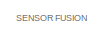
[diagram: Subsystem5/InputROSGazebo - part 1/3, top center region]
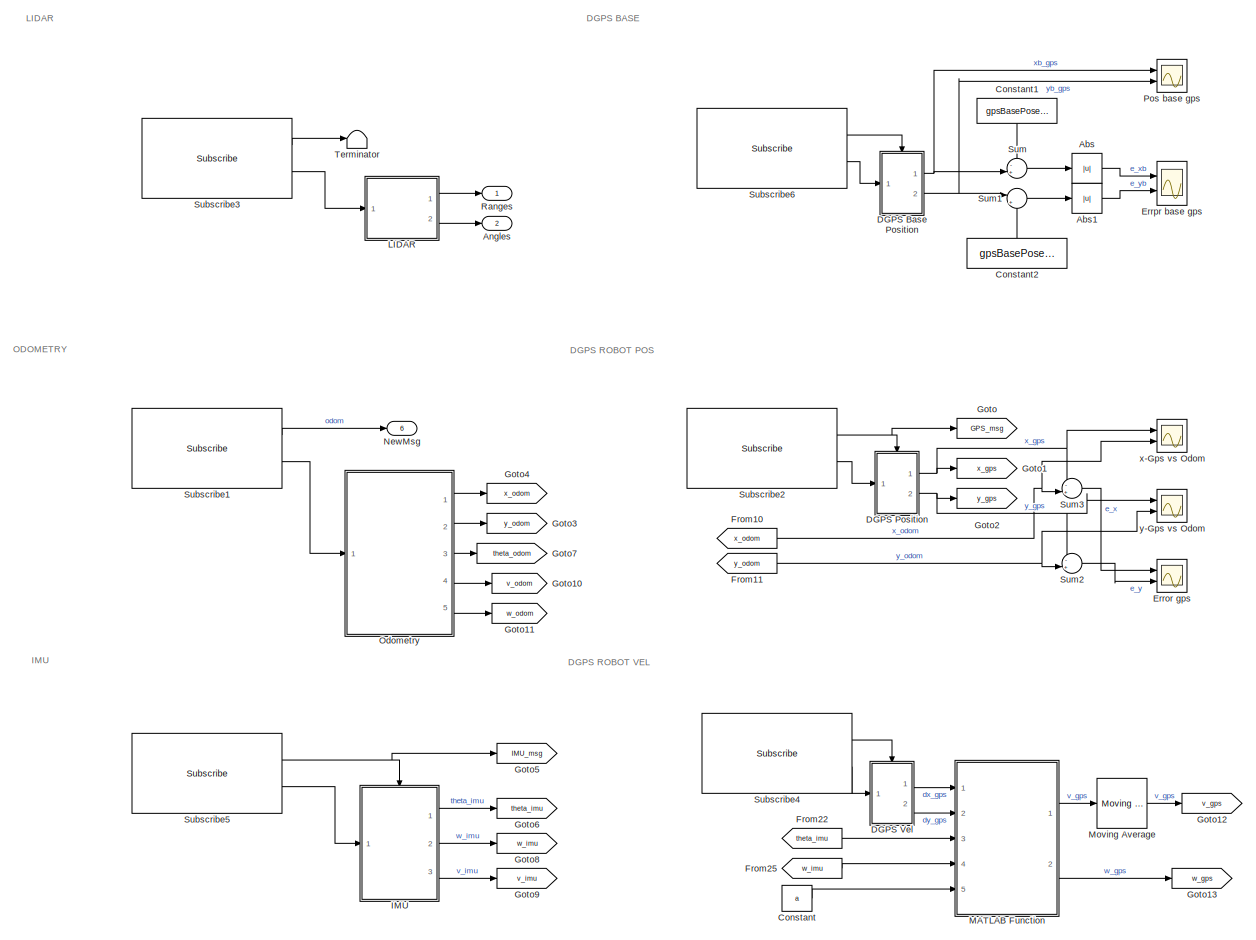
[diagram: Subsystem5/InputROSGazebo - part 2/3, left side, full height]
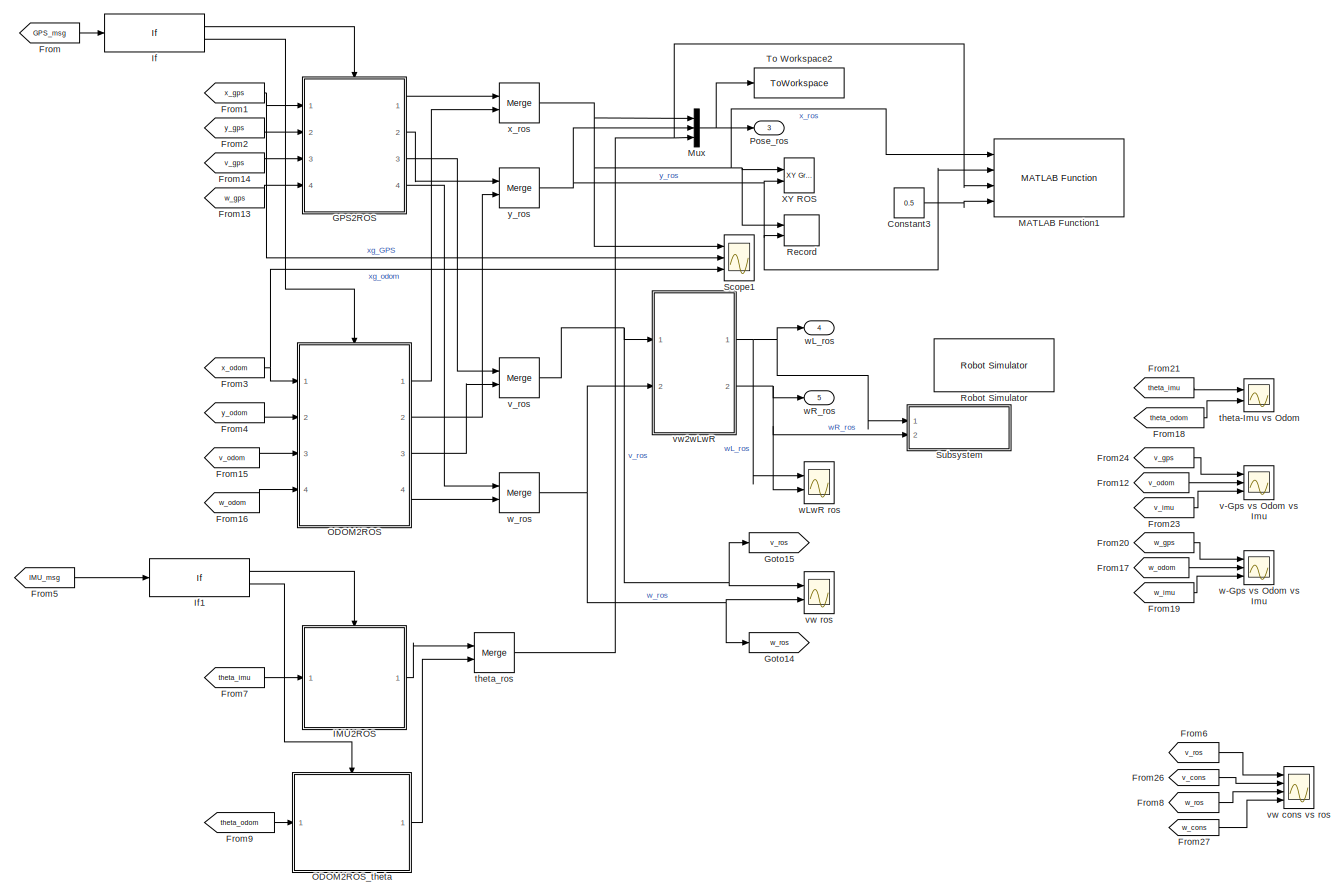
[diagram: Subsystem5/InputROSGazebo - part 3/3, right side, full height]
BLOCK [SubSystem] Subsystem5/InputROSGazebo
  PortSchema = {"entries":[{"content":{"sides":[{"content":{"connectorIds":[]},"type":"ConnectorPlacement.EquallySpacedRectSide","uuid":"e5f26438-64a4-41f7-8cc6-3d189d8fc99d"},{"content":{"connectorIds":["Out1","Out2","Out3","Out4","Out5"],"side":"RIGHT"},"type":"ConnectorPlacement.EquallySpacedRectSide","uuid":"ad1152d5-f521-47db-b945-149d6bcc843b"},{"content":{"connectorIds":["Out6"],"side":"TOP"},"type":"Conn...<+269ch>
  Ports = [0, 6]
  RequestExecContextInheritance = off
BLOCK [Abs] Subsystem5/InputROSGazebo/Abs
  SaturateOnIntegerOverflow = off
BLOCK [Abs] Subsystem5/InputROSGazebo/Abs1
  SaturateOnIntegerOverflow = off
BLOCK [Outport] Subsystem5/InputROSGazebo/Angles
  Port = 2
BLOCK [Constant] Subsystem5/InputROSGazebo/Constant
  Value = a
BLOCK [Constant] Subsystem5/InputROSGazebo/Constant1
  NameLocation = left
  Value = gpsBasePose(1)
BLOCK [Constant] Subsystem5/InputROSGazebo/Constant2
  NameLocation = right
  Value = gpsBasePose(2)
BLOCK [Constant] Subsystem5/InputROSGazebo/Constant3
  Commented = on
  Value = 0.5
BLOCK [SubSystem] Subsystem5/InputROSGazebo/DGPS Base Position
  Ports = [1, 2, 1]
  RequestExecContextInheritance = off
BLOCK [BusSelector] Subsystem5/InputROSGazebo/DGPS Base Position/Bus Selector1
  OutputSignals = longitude,latitude,altitude
  Ports = [1, 3]
BLOCK [Constant] Subsystem5/InputROSGazebo/DGPS Base Position/Constant3
  Value = alt_z
BLOCK [EnablePort] Subsystem5/InputROSGazebo/DGPS Base Position/Enable
  Ports = []
BLOCK [Gain] Subsystem5/InputROSGazebo/DGPS Base Position/Gain
  Gain = -1
BLOCK [Gain] Subsystem5/InputROSGazebo/DGPS Base Position/Gain1
  Gain = -1
BLOCK [Gain] Subsystem5/InputROSGazebo/DGPS Base Position/Gain2
  Gain = -1
BLOCK [Inport] Subsystem5/InputROSGazebo/DGPS Base Position/In2
BLOCK [Reference] Subsystem5/InputROSGazebo/DGPS Base Position/LLA to Flat Earth  REF=aerolibtransform2/LLA to Flat Earth
  Ports = [3, 1]
  SourceBlock = aerolibtransform2/LLA to Flat Earth
  SourceProductBaseCode = AE
  SourceType = LLA to Flat Earth
BLOCK [Mux] Subsystem5/InputROSGazebo/DGPS Base Position/Mux1
  DisplayOption = bar
  Inputs = 2
  Ports = [2, 1]
BLOCK [Selector] Subsystem5/InputROSGazebo/DGPS Base Position/Selector1
  IndexOptions = Index vector (dialog)
  Indices = [1]
  InputPortWidth = 3
  OutputSizes = 1
  Ports = [1, 1]
BLOCK [Selector] Subsystem5/InputROSGazebo/DGPS Base Position/Selector2
  IndexOptions = Index vector (dialog)
  Indices = [2]
  InputPortWidth = 3
  OutputSizes = 1
  Ports = [1, 1]
BLOCK [ToWorkspace] Subsystem5/InputROSGazebo/DGPS Base Position/To Workspace1
  FixptAsFi = on
  MaxDataPoints = inf
  Ports = [1]
  SampleTime = -1
  VariableName = xyz_base
BLOCK [ToWorkspace] Subsystem5/InputROSGazebo/DGPS Base Position/To Workspace3
  FixptAsFi = on
  MaxDataPoints = inf
  Ports = [1]
  SampleTime = -1
  SaveFormat = Timeseries
  VariableName = gps_base_pos
BLOCK [Outport] Subsystem5/InputROSGazebo/DGPS Base Position/xb_gps
BLOCK [Outport] Subsystem5/InputROSGazebo/DGPS Base Position/yb_gps
  Port = 2
BLOCK [SubSystem] Subsystem5/InputROSGazebo/DGPS Position
  Ports = [1, 2, 1]
  RequestExecContextInheritance = off
BLOCK [BusSelector] Subsystem5/InputROSGazebo/DGPS Position/Bus Selector1
  OutputSignals = longitude,latitude,altitude
  Ports = [1, 3]
BLOCK [Constant] Subsystem5/InputROSGazebo/DGPS Position/Constant4
  Value = alt_z
BLOCK [EnablePort] Subsystem5/InputROSGazebo/DGPS Position/Enable
  Ports = []
BLOCK [Gain] Subsystem5/InputROSGazebo/DGPS Position/Gain
  Gain = -1
BLOCK [Gain] Subsystem5/InputROSGazebo/DGPS Position/Gain1
  Gain = -1
BLOCK [Gain] Subsystem5/InputROSGazebo/DGPS Position/Gain2
  Gain = -1
BLOCK [Inport] Subsystem5/InputROSGazebo/DGPS Position/In2
BLOCK [Reference] Subsystem5/InputROSGazebo/DGPS Position/LLA to Flat Earth1  REF=aerolibtransform2/LLA to Flat Earth
  Ports = [3, 1]
  SourceBlock = aerolibtransform2/LLA to Flat Earth
  SourceProductBaseCode = AE
  SourceType = LLA to Flat Earth
BLOCK [Mux] Subsystem5/InputROSGazebo/DGPS Position/Mux2
  DisplayOption = bar
  Inputs = 2
  Ports = [2, 1]
BLOCK [Selector] Subsystem5/InputROSGazebo/DGPS Position/Selector1
  IndexOptions = Index vector (dialog)
  Indices = [1]
  InputPortWidth = 3
  OutputSizes = 1
  Ports = [1, 1]
BLOCK [Selector] Subsystem5/InputROSGazebo/DGPS Position/Selector2
  IndexOptions = Index vector (dialog)
  Indices = [2]
  InputPortWidth = 3
  OutputSizes = 1
  Ports = [1, 1]
BLOCK [ToWorkspace] Subsystem5/InputROSGazebo/DGPS Position/To Workspace3
  FixptAsFi = on
  MaxDataPoints = inf
  Ports = [1]
  SampleTime = -1
  SaveFormat = Timeseries
  VariableName = gps_position
BLOCK [Outport] Subsystem5/InputROSGazebo/DGPS Position/x_gps
BLOCK [Outport] Subsystem5/InputROSGazebo/DGPS Position/y_gps
  Port = 2
BLOCK [SubSystem] Subsystem5/InputROSGazebo/DGPS Vel
  Ports = [1, 2, 1]
  RequestExecContextInheritance = off
BLOCK [BusSelector] Subsystem5/InputROSGazebo/DGPS Vel/Bus Selector3
  OutputSignals = vector.x,vector.y
  Ports = [1, 2]
BLOCK [EnablePort] Subsystem5/InputROSGazebo/DGPS Vel/Enable
  Ports = []
BLOCK [Gain] Subsystem5/InputROSGazebo/DGPS Vel/Gain
  Gain = -1
BLOCK [Gain] Subsystem5/InputROSGazebo/DGPS Vel/Gain1
  Gain = -1
BLOCK [Inport] Subsystem5/InputROSGazebo/DGPS Vel/In1
BLOCK [ToWorkspace] Subsystem5/InputROSGazebo/DGPS Vel/To Workspace6
  FixptAsFi = on
  MaxDataPoints = inf
  Ports = [1]
  SampleTime = -1
  SaveFormat = Timeseries
  VariableName = gps_velocity
BLOCK [Outport] Subsystem5/InputROSGazebo/DGPS Vel/dx_gps
BLOCK [Outport] Subsystem5/InputROSGazebo/DGPS Vel/dy_gps
  Port = 2
BLOCK [Scope] Subsystem5/InputROSGazebo/Error gps
  Floating = off
  NumInputPorts = 2
  Ports = [2]
  ScopeSpecificationString = Simulink.scopes.TimeScopeBlockCfg('CurrentConfiguration', extmgr.ConfigurationSet(extmgr.Configuration('Core','General UI',true),extmgr.Configuration('Core','Source UI',true),extmgr.Configuration('Sources','WiredSimulink',true,'DataLoggingVariableName','ScopeData3'),extmgr.Configuration('Visuals','Time Domain',true,'SerializedDisplays',{struct('MinYLimReal','0.23705','MaxYLimReal','0.24972','YLabe...<+2440ch>
BLOCK [Scope] Subsystem5/InputROSGazebo/Errpr base gps
  Floating = off
  NumInputPorts = 2
  Ports = [2]
  ScopeSpecificationString = Simulink.scopes.TimeScopeBlockCfg('CurrentConfiguration', extmgr.ConfigurationSet(extmgr.Configuration('Core','General UI',true),extmgr.Configuration('Core','Source UI',true),extmgr.Configuration('Sources','WiredSimulink',true,'DataLoggingVariableName','ScopeData2'),extmgr.Configuration('Visuals','Time Domain',true,'SerializedDisplays',{struct('MinYLimReal','0.01134','MaxYLimReal','0.01284','YLabe...<+2442ch>
BLOCK [From] Subsystem5/InputROSGazebo/From
  GotoTag = GPS_msg
BLOCK [From] Subsystem5/InputROSGazebo/From1
  GotoTag = x_gps
BLOCK [From] Subsystem5/InputROSGazebo/From10
  GotoTag = x_odom
BLOCK [From] Subsystem5/InputROSGazebo/From11
  GotoTag = y_odom
BLOCK [From] Subsystem5/InputROSGazebo/From12
  GotoTag = v_odom
BLOCK [From] Subsystem5/InputROSGazebo/From13
  GotoTag = w_gps
  NameLocation = top
BLOCK [From] Subsystem5/InputROSGazebo/From14
  GotoTag = v_gps
BLOCK [From] Subsystem5/InputROSGazebo/From15
  GotoTag = v_odom
BLOCK [From] Subsystem5/InputROSGazebo/From16
  GotoTag = w_odom
BLOCK [From] Subsystem5/InputROSGazebo/From17
  GotoTag = w_odom
BLOCK [From] Subsystem5/InputROSGazebo/From18
  GotoTag = theta_odom
BLOCK [From] Subsystem5/InputROSGazebo/From19
  GotoTag = w_imu
BLOCK [From] Subsystem5/InputROSGazebo/From2
  GotoTag = y_gps
BLOCK [From] Subsystem5/InputROSGazebo/From20
  GotoTag = w_gps
BLOCK [From] Subsystem5/InputROSGazebo/From21
  GotoTag = theta_imu
BLOCK [From] Subsystem5/InputROSGazebo/From22
  GotoTag = theta_imu
BLOCK [From] Subsystem5/InputROSGazebo/From23
  GotoTag = v_imu
BLOCK [From] Subsystem5/InputROSGazebo/From24
  GotoTag = v_gps
BLOCK [From] Subsystem5/InputROSGazebo/From25
  GotoTag = w_imu
BLOCK [From] Subsystem5/InputROSGazebo/From26
  GotoTag = v_cons
  TagVisibility = global
BLOCK [From] Subsystem5/InputROSGazebo/From27
  GotoTag = w_cons
  TagVisibility = global
BLOCK [From] Subsystem5/InputROSGazebo/From3
  GotoTag = x_odom
BLOCK [From] Subsystem5/InputROSGazebo/From4
  GotoTag = y_odom
BLOCK [From] Subsystem5/InputROSGazebo/From5
  GotoTag = IMU_msg
BLOCK [From] Subsystem5/InputROSGazebo/From6
  GotoTag = v_ros
  TagVisibility = global
BLOCK [From] Subsystem5/InputROSGazebo/From7
  GotoTag = theta_imu
BLOCK [From] Subsystem5/InputROSGazebo/From8
  GotoTag = w_ros
  TagVisibility = global
BLOCK [From] Subsystem5/InputROSGazebo/From9
  GotoTag = theta_odom
BLOCK [SubSystem] Subsystem5/InputROSGazebo/GPS2ROS
  Ports = [4, 4, 0, 0, 0, 0, 0, 1]
  RequestExecContextInheritance = off
  TreatAsAtomicUnit = on
BLOCK [ActionPort] Subsystem5/InputROSGazebo/GPS2ROS/Action Port
  ActionPortLabel = if(u1 == 1)
BLOCK [Inport] Subsystem5/InputROSGazebo/GPS2ROS/v_gps
  Port = 3
BLOCK [Outport] Subsystem5/InputROSGazebo/GPS2ROS/v_ros
  Port = 3
  VectorParamsAs1DForOutWhenUnconnected = off
BLOCK [Inport] Subsystem5/InputROSGazebo/GPS2ROS/w_gps
  Port = 4
BLOCK [Outport] Subsystem5/InputROSGazebo/GPS2ROS/w_ros
  Port = 4
  VectorParamsAs1DForOutWhenUnconnected = off
BLOCK [Inport] Subsystem5/InputROSGazebo/GPS2ROS/x_gps
BLOCK [Outport] Subsystem5/InputROSGazebo/GPS2ROS/x_ros
  VectorParamsAs1DForOutWhenUnconnected = off
BLOCK [Inport] Subsystem5/InputROSGazebo/GPS2ROS/y_gps
  Port = 2
BLOCK [Outport] Subsystem5/InputROSGazebo/GPS2ROS/y_ros
  Port = 2
  VectorParamsAs1DForOutWhenUnconnected = off
BLOCK [Goto] Subsystem5/InputROSGazebo/Goto
  GotoTag = GPS_msg
BLOCK [Goto] Subsystem5/InputROSGazebo/Goto1
  GotoTag = x_gps
BLOCK [Goto] Subsystem5/InputROSGazebo/Goto10
  GotoTag = v_odom
BLOCK [Goto] Subsystem5/InputROSGazebo/Goto11
  GotoTag = w_odom
BLOCK [Goto] Subsystem5/InputROSGazebo/Goto12
  GotoTag = v_gps
  NameLocation = right
BLOCK [Goto] Subsystem5/InputROSGazebo/Goto13
  GotoTag = w_gps
BLOCK [Goto] Subsystem5/InputROSGazebo/Goto14
  GotoTag = w_ros
  TagVisibility = global
BLOCK [Goto] Subsystem5/InputROSGazebo/Goto15
  GotoTag = v_ros
  TagVisibility = global
BLOCK [Goto] Subsystem5/InputROSGazebo/Goto2
  GotoTag = y_gps
BLOCK [Goto] Subsystem5/InputROSGazebo/Goto3
  GotoTag = y_odom
BLOCK [Goto] Subsystem5/InputROSGazebo/Goto4
  GotoTag = x_odom
BLOCK [Goto] Subsystem5/InputROSGazebo/Goto5
  GotoTag = IMU_msg
BLOCK [Goto] Subsystem5/InputROSGazebo/Goto6
  GotoTag = theta_imu
BLOCK [Goto] Subsystem5/InputROSGazebo/Goto7
  GotoTag = theta_odom
BLOCK [Goto] Subsystem5/InputROSGazebo/Goto8
  GotoTag = w_imu
BLOCK [Goto] Subsystem5/InputROSGazebo/Goto9
  GotoTag = v_imu
BLOCK [SubSystem] Subsystem5/InputROSGazebo/IMU
  Ports = [1, 3, 1]
  RequestExecContextInheritance = off
BLOCK [BusSelector] Subsystem5/InputROSGazebo/IMU/Bus Selector1
  OutputSignals = angular_velocity.z,linear_acceleration.x,linear_acceleration.y,linear_acceleration.z
  Ports = [1, 4]
BLOCK [BusSelector] Subsystem5/InputROSGazebo/IMU/Bus Selector2
  OutputSignals = orientation.x,orientation.y,orientation.z,orientation.w
  Ports = [1, 4]
BLOCK [EnablePort] Subsystem5/InputROSGazebo/IMU/Enable
  Ports = []
BLOCK [Inport] Subsystem5/InputROSGazebo/IMU/In2
BLOCK [Integrator] Subsystem5/InputROSGazebo/IMU/Integrator
  Ports = [1, 1]
BLOCK [Integrator] Subsystem5/InputROSGazebo/IMU/Integrator1
  Ports = [1, 1]
BLOCK [Integrator] Subsystem5/InputROSGazebo/IMU/Integrator2
  Ports = [1, 1]
BLOCK [Scope] Subsystem5/InputROSGazebo/IMU/Scope
  Floating = off
  NumInputPorts = 3
  Ports = [3]
  ScopeSpecificationString = Simulink.scopes.TimeScopeBlockCfg('CurrentConfiguration', extmgr.ConfigurationSet(extmgr.Configuration('Core','General UI',true),extmgr.Configuration('Core','Source UI',true),extmgr.Configuration('Sources','WiredSimulink',true,'DataLoggingVariableName','ScopeData6'),extmgr.Configuration('Visuals','Time Domain',true,'SerializedDisplays',{struct('MinYLimReal','-0.36141','MaxYLimReal','1.49826','YLab...<+1523ch>
BLOCK [Scope] Subsystem5/InputROSGazebo/IMU/Scope1
  Floating = off
  NumInputPorts = 3
  Ports = [3]
  ScopeSpecificationString = Simulink.scopes.TimeScopeBlockCfg('CurrentConfiguration', extmgr.ConfigurationSet(extmgr.Configuration('Core','General UI',true),extmgr.Configuration('Core','Source UI',true),extmgr.Configuration('Sources','WiredSimulink',true,'DataLoggingVariableName','ScopeData7'),extmgr.Configuration('Visuals','Time Domain',true,'SerializedDisplays',{struct('MinYLimReal','-3.35658','MaxYLimReal','3.56393','YLab...<+1475ch>
BLOCK [ToWorkspace] Subsystem5/InputROSGazebo/IMU/To Workspace7
  FixptAsFi = on
  MaxDataPoints = inf
  Ports = [1]
  SampleTime = -1
  SaveFormat = Timeseries
  VariableName = imu
BLOCK [ToWorkspace] Subsystem5/InputROSGazebo/IMU/To Workspace8
  FixptAsFi = on
  MaxDataPoints = inf
  Ports = [1]
  SampleTime = -1
  SaveFormat = Timeseries
  VariableName = imu_theta
BLOCK [SubSystem] Subsystem5/InputROSGazebo/IMU/quad2eul
  ErrorFcn = Stateflow.Translate.translate
  PermitHierarchicalResolution = ExplicitOnly
  Ports = [4, 1]
  RequestExecContextInheritance = off
  SFBlockType = MATLAB Function
  TreatAsAtomicUnit = on
BLOCK [Demux] Subsystem5/InputROSGazebo/IMU/quad2eul/ Demux 
  Outputs = 1
  Ports = [1, 1]
BLOCK [S-Function] Subsystem5/InputROSGazebo/IMU/quad2eul/ SFunction 
  EnableBusSupport = on
  FunctionName = sf_sfun
  PortCounts = [4 2]
  Ports = [4, 2]
  SFcnIsStateOwnerBlock = off
  SFunctionDeploymentMode = off
  Tag = Stateflow S-Function 15
BLOCK [Terminator] Subsystem5/InputROSGazebo/IMU/quad2eul/ Terminator 
BLOCK [Inport] Subsystem5/InputROSGazebo/IMU/quad2eul/W
  Port = 4
BLOCK [Inport] Subsystem5/InputROSGazebo/IMU/quad2eul/X
BLOCK [Inport] Subsystem5/InputROSGazebo/IMU/quad2eul/Y
  Port = 2
BLOCK [Outport] Subsystem5/InputROSGazebo/IMU/quad2eul/Yaw
  VectorParamsAs1DForOutWhenUnconnected = off
BLOCK [Inport] Subsystem5/InputROSGazebo/IMU/quad2eul/Z
  Port = 3
BLOCK [Outport] Subsystem5/InputROSGazebo/IMU/theta_imu
BLOCK [Outport] Subsystem5/InputROSGazebo/IMU/v_imu
  Port = 3
BLOCK [Outport] Subsystem5/InputROSGazebo/IMU/w_imu
  Port = 2
BLOCK [SubSystem] Subsystem5/InputROSGazebo/IMU2ROS
  Ports = [1, 1, 0, 0, 0, 0, 0, 1]
  RequestExecContextInheritance = off
  TreatAsAtomicUnit = on
BLOCK [ActionPort] Subsystem5/InputROSGazebo/IMU2ROS/Action Port
  ActionPortLabel = if(u1 == 1)
BLOCK [Inport] Subsystem5/InputROSGazebo/IMU2ROS/theta_imu
BLOCK [Outport] Subsystem5/InputROSGazebo/IMU2ROS/theta_ros
  VectorParamsAs1DForOutWhenUnconnected = off
BLOCK [If] Subsystem5/InputROSGazebo/If
  IfExpression = u1 == 1
  Ports = [1, 2]
BLOCK [If] Subsystem5/InputROSGazebo/If1
  IfExpression = u1 == 1
  Ports = [1, 2]
BLOCK [SubSystem] Subsystem5/InputROSGazebo/LIDAR
  Ports = [1, 2]
  RequestExecContextInheritance = off
BLOCK [Outport] Subsystem5/InputROSGazebo/LIDAR/Angles
  Port = 2
BLOCK [Inport] Subsystem5/InputROSGazebo/LIDAR/In1
BLOCK [SubSystem] Subsystem5/InputROSGazebo/LIDAR/MATLAB Function
  ErrorFcn = Stateflow.Translate.translate
  PermitHierarchicalResolution = ExplicitOnly
  Ports = [1, 2]
  RequestExecContextInheritance = off
  SFBlockType = MATLAB Function
  TreatAsAtomicUnit = on
BLOCK [Demux] Subsystem5/InputROSGazebo/LIDAR/MATLAB Function/ Demux 
  Outputs = 1
  Ports = [1, 1]
BLOCK [S-Function] Subsystem5/InputROSGazebo/LIDAR/MATLAB Function/ SFunction 
  EnableBusSupport = on
  FunctionName = sf_sfun
  PortCounts = [1 3]
  Ports = [1, 3]
  SFcnIsStateOwnerBlock = off
  SFunctionDeploymentMode = off
  Tag = Stateflow S-Function 4
BLOCK [Terminator] Subsystem5/InputROSGazebo/LIDAR/MATLAB Function/ Terminator 
BLOCK [Outport] Subsystem5/InputROSGazebo/LIDAR/MATLAB Function/Angles
  Port = 2
BLOCK [Inport] Subsystem5/InputROSGazebo/LIDAR/MATLAB Function/LaserScanMsg
BLOCK [Outport] Subsystem5/InputROSGazebo/LIDAR/MATLAB Function/Ranges
BLOCK [Outport] Subsystem5/InputROSGazebo/LIDAR/Ranges
BLOCK [ToWorkspace] Subsystem5/InputROSGazebo/LIDAR/To Workspace1
  FixptAsFi = on
  MaxDataPoints = inf
  Ports = [1]
  SampleTime = -1
  SaveFormat = Timeseries
  VariableName = Lidar
BLOCK [SubSystem] Subsystem5/InputROSGazebo/MATLAB Function
  ErrorFcn = Stateflow.Translate.translate
  PermitHierarchicalResolution = ExplicitOnly
  Ports = [5, 2]
  RequestExecContextInheritance = off
  SFBlockType = MATLAB Function
  TreatAsAtomicUnit = on
BLOCK [Demux] Subsystem5/InputROSGazebo/MATLAB Function/ Demux 
  Outputs = 1
  Ports = [1, 1]
BLOCK [S-Function] Subsystem5/InputROSGazebo/MATLAB Function/ SFunction 
  EnableBusSupport = on
  FunctionName = sf_sfun
  PortCounts = [5 3]
  Ports = [5, 3]
  SFcnIsStateOwnerBlock = off
  SFunctionDeploymentMode = off
  Tag = Stateflow S-Function 16
BLOCK [Terminator] Subsystem5/InputROSGazebo/MATLAB Function/ Terminator 
BLOCK [Inport] Subsystem5/InputROSGazebo/MATLAB Function/a
  Port = 5
BLOCK [Inport] Subsystem5/InputROSGazebo/MATLAB Function/dtheta
  Port = 4
BLOCK [Inport] Subsystem5/InputROSGazebo/MATLAB Function/dx
BLOCK [Inport] Subsystem5/InputROSGazebo/MATLAB Function/dy
  Port = 2
BLOCK [Inport] Subsystem5/InputROSGazebo/MATLAB Function/theta
  Port = 3
BLOCK [Outport] Subsystem5/InputROSGazebo/MATLAB Function/v
BLOCK [Outport] Subsystem5/InputROSGazebo/MATLAB Function/w
  Port = 2
BLOCK [Reference] Subsystem5/InputROSGazebo/MATLAB Function1  REF=mobileRoboticsTrainingLib/Robot Simulator/MATLAB Function
  Commented = on
  Ports = [4]
  SourceBlock = mobileRoboticsTrainingLib/Robot Simulator/MATLAB Function
  SourceProductName = Mobile Robotics Training Library
  SourceType = SubSystem
BLOCK [Reference] Subsystem5/InputROSGazebo/Moving Average  REF=dspstat3/Moving
Average
  Ports = [1, 1]
  SourceBlock = dspstat3/Moving\nAverage
  SourceProductBaseCode = DS
  SourceType = dsp.simulink.MovingAverage
BLOCK [Mux] Subsystem5/InputROSGazebo/Mux
  DisplayOption = bar
  Inputs = 3
  Ports = [3, 1]
BLOCK [Outport] Subsystem5/InputROSGazebo/NewMsg
  Port = 6
BLOCK [SubSystem] Subsystem5/InputROSGazebo/ODOM2ROS
  Ports = [4, 4, 0, 0, 0, 0, 0, 1]
  RequestExecContextInheritance = off
  TreatAsAtomicUnit = on
BLOCK [ActionPort] Subsystem5/InputROSGazebo/ODOM2ROS/Action Port
  ActionPortLabel = else
BLOCK [Inport] Subsystem5/InputROSGazebo/ODOM2ROS/v_odom
  Port = 3
BLOCK [Outport] Subsystem5/InputROSGazebo/ODOM2ROS/v_ros
  Port = 3
  VectorParamsAs1DForOutWhenUnconnected = off
BLOCK [Inport] Subsystem5/InputROSGazebo/ODOM2ROS/w_odom
  Port = 4
BLOCK [Outport] Subsystem5/InputROSGazebo/ODOM2ROS/w_ros
  Port = 4
  VectorParamsAs1DForOutWhenUnconnected = off
BLOCK [Inport] Subsystem5/InputROSGazebo/ODOM2ROS/x_odom
BLOCK [Outport] Subsystem5/InputROSGazebo/ODOM2ROS/x_ros
  VectorParamsAs1DForOutWhenUnconnected = off
BLOCK [Inport] Subsystem5/InputROSGazebo/ODOM2ROS/y_odom
  Port = 2
BLOCK [Outport] Subsystem5/InputROSGazebo/ODOM2ROS/y_ros
  Port = 2
  VectorParamsAs1DForOutWhenUnconnected = off
BLOCK [SubSystem] Subsystem5/InputROSGazebo/ODOM2ROS_theta
  Ports = [1, 1, 0, 0, 0, 0, 0, 1]
  RequestExecContextInheritance = off
  TreatAsAtomicUnit = on
BLOCK [ActionPort] Subsystem5/InputROSGazebo/ODOM2ROS_theta/Action Port
  ActionPortLabel = else
BLOCK [Inport] Subsystem5/InputROSGazebo/ODOM2ROS_theta/theta_odom
BLOCK [Outport] Subsystem5/InputROSGazebo/ODOM2ROS_theta/theta_ros
  VectorParamsAs1DForOutWhenUnconnected = off
BLOCK [SubSystem] Subsystem5/InputROSGazebo/Odometry
  Ports = [1, 5]
  RequestExecContextInheritance = off
BLOCK [BusSelector] Subsystem5/InputROSGazebo/Odometry/Bus Selector
  OutputSignals = pose.pose.position.x,pose.pose.position.y,pose.pose.orientation.x,pose.pose.orientation.y,pose.pose.orientation.z,pose.pose.orientation.w
  Ports = [1, 6]
BLOCK [BusSelector] Subsystem5/InputROSGazebo/Odometry/Bus Selector1
  OutputSignals = twist.twist.linear.x,twist.twist.angular.z
  Ports = [1, 2]
BLOCK [Inport] Subsystem5/InputROSGazebo/Odometry/In1
BLOCK [Reference] Subsystem5/InputROSGazebo/Odometry/XY ODOM  REF=simulink/Sinks/XY Graph
  Commented = on
  Ports = [2]
  SourceBlock = simulink/Sinks/XY Graph
  SourceProductBaseCode = SL
  SourceType = XY scope.
BLOCK [SubSystem] Subsystem5/InputROSGazebo/Odometry/quad2eul
  ErrorFcn = Stateflow.Translate.translate
  PermitHierarchicalResolution = ExplicitOnly
  Ports = [4, 1]
  RequestExecContextInheritance = off
  SFBlockType = MATLAB Function
  TreatAsAtomicUnit = on
BLOCK [Demux] Subsystem5/InputROSGazebo/Odometry/quad2eul/ Demux 
  Outputs = 1
  Ports = [1, 1]
BLOCK [S-Function] Subsystem5/InputROSGazebo/Odometry/quad2eul/ SFunction 
  EnableBusSupport = on
  FunctionName = sf_sfun
  PortCounts = [4 2]
  Ports = [4, 2]
  SFcnIsStateOwnerBlock = off
  SFunctionDeploymentMode = off
  Tag = Stateflow S-Function 7
BLOCK [Terminator] Subsystem5/InputROSGazebo/Odometry/quad2eul/ Terminator 
BLOCK [Inport] Subsystem5/InputROSGazebo/Odometry/quad2eul/W
  Port = 4
BLOCK [Inport] Subsystem5/InputROSGazebo/Odometry/quad2eul/X
BLOCK [Inport] Subsystem5/InputROSGazebo/Odometry/quad2eul/Y
  Port = 2
BLOCK [Outport] Subsystem5/InputROSGazebo/Odometry/quad2eul/Yaw
  VectorParamsAs1DForOutWhenUnconnected = off
BLOCK [Inport] Subsystem5/InputROSGazebo/Odometry/quad2eul/Z
  Port = 3
BLOCK [Outport] Subsystem5/InputROSGazebo/Odometry/theta_odom
  Port = 3
BLOCK [Outport] Subsystem5/InputROSGazebo/Odometry/v_odom
  Port = 4
BLOCK [Outport] Subsystem5/InputROSGazebo/Odometry/w_odom
  Port = 5
BLOCK [Outport] Subsystem5/InputROSGazebo/Odometry/x_odom
BLOCK [Outport] Subsystem5/InputROSGazebo/Odometry/y_odom
  Port = 2
BLOCK [Scope] Subsystem5/InputROSGazebo/Pos base gps
  Floating = off
  NumInputPorts = 2
  Ports = [2]
  ScopeSpecificationString = Simulink.scopes.TimeScopeBlockCfg('CurrentConfiguration', extmgr.ConfigurationSet(extmgr.Configuration('Core','General UI',true),extmgr.Configuration('Core','Source UI',true),extmgr.Configuration('Sources','WiredSimulink',true,'DataLoggingVariableName','ScopeData1'),extmgr.Configuration('Visuals','Time Domain',true,'SerializedDisplays',{struct('MinYLimReal','0.98575','MaxYLimReal','0.99403','YLabe...<+2040ch>
BLOCK [Outport] Subsystem5/InputROSGazebo/Pose_ros
  Port = 3
BLOCK [Outport] Subsystem5/InputROSGazebo/Ranges
BLOCK [Record] Subsystem5/InputROSGazebo/Record
  Commented = on
  FileSettingsInternal = {"entries":[{"content":{"excelSettings":{"content":{},"type":"Streamout.ExcelSettings"}},"type":"Streamout.FileSettingStorage","uuid":"2701ad38-51b1-4612-8c68-417fbf51999a"}],"packageUris":["http://schema.mathworks.com/mf0/streamout_blocks/R2020a"],"version":"1.0"}
  Layout = [1 1]
  Ports = [2]
  SignalsInternal = {"entries":[{"content":{"signals":[{"content":{"blockPath":["rasoc_tesis_v4/Subsystem5/InputROSGazebo/Record"],"channel":[],"dimensions":[1],"domain":"rasoc_tesis_v4/subsystem5/inputrosgazebo/record","lineColor":"#7e2f8e","plots":[1],"port":1,"sid":[""],"signalID":28491,"signalName":"x_ros"},"type":"RecordBlkView.Signal","uuid":"86327079-759d-4581-b614-a804c86ae6c2"},{"content":{"blockPath":["raso...<+481ch>
  VisualizationBindings = {"xyplotplugin":{"info":[{"series":[{"bindingParametersList":[{"parameter":"X-Axis","signalID":28491,"signalName":"x_ros"},{"parameter":"Y-Axis","signalID":28495,"signalName":"y_ros"}],"seriesID":382}],"subplotID":1}]}}
BLOCK [Reference] Subsystem5/InputROSGazebo/Robot Simulator  REF=mobileRoboticsTrainingLib/Robot Simulator
  Commented = on
  Ports = [2]
  Priority = 99
  SourceBlock = mobileRoboticsTrainingLib/Robot Simulator
  SourceProductName = Mobile Robotics Training Library
  SourceType = Robot Simulator
BLOCK [Scope] Subsystem5/InputROSGazebo/Scope1
  Floating = off
  NumInputPorts = 3
  Ports = [3]
  ScopeSpecificationString = Simulink.scopes.TimeScopeBlockCfg('CurrentConfiguration', extmgr.ConfigurationSet(extmgr.Configuration('Core','General UI',true),extmgr.Configuration('Core','Source UI',true),extmgr.Configuration('Sources','WiredSimulink',true,'DataLoggingVariableName','ScopeData2'),extmgr.Configuration('Visuals','Time Domain',true,'SerializedDisplays',{struct('MinYLimReal','-1.36714','MaxYLimReal','51.88316','YLa...<+1558ch>
BLOCK [Reference] Subsystem5/InputROSGazebo/Subscribe1  REF=ros2lib/Subscribe  (lib defined in slx_3c1549211f48)
  Ports = [0, 2]
  SourceBlock = ros2lib/Subscribe
  SourceProductBaseCode = RR
  SourceType = ROS2 Subscribe
BLOCK [Reference] Subsystem5/InputROSGazebo/Subscribe2  REF=ros2lib/Subscribe  (lib defined in slx_3c1549211f48)
  Ports = [0, 2]
  SourceBlock = ros2lib/Subscribe
  SourceProductBaseCode = RR
  SourceType = ROS2 Subscribe
BLOCK [Reference] Subsystem5/InputROSGazebo/Subscribe3  REF=ros2lib/Subscribe  (lib defined in slx_3c1549211f48)
  Ports = [0, 2]
  SourceBlock = ros2lib/Subscribe
  SourceProductBaseCode = RR
  SourceType = ROS2 Subscribe
BLOCK [Reference] Subsystem5/InputROSGazebo/Subscribe4  REF=ros2lib/Subscribe  (lib defined in slx_3c1549211f48)
  Ports = [0, 2]
  SourceBlock = ros2lib/Subscribe
  SourceProductBaseCode = RR
  SourceType = ROS2 Subscribe
BLOCK [Reference] Subsystem5/InputROSGazebo/Subscribe5  REF=ros2lib/Subscribe  (lib defined in slx_3c1549211f48)
  Ports = [0, 2]
  SourceBlock = ros2lib/Subscribe
  SourceProductBaseCode = RR
  SourceType = ROS2 Subscribe
BLOCK [Reference] Subsystem5/InputROSGazebo/Subscribe6  REF=ros2lib/Subscribe  (lib defined in slx_3c1549211f48)
  Ports = [0, 2]
  SourceBlock = ros2lib/Subscribe
  SourceProductBaseCode = RR
  SourceType = ROS2 Subscribe
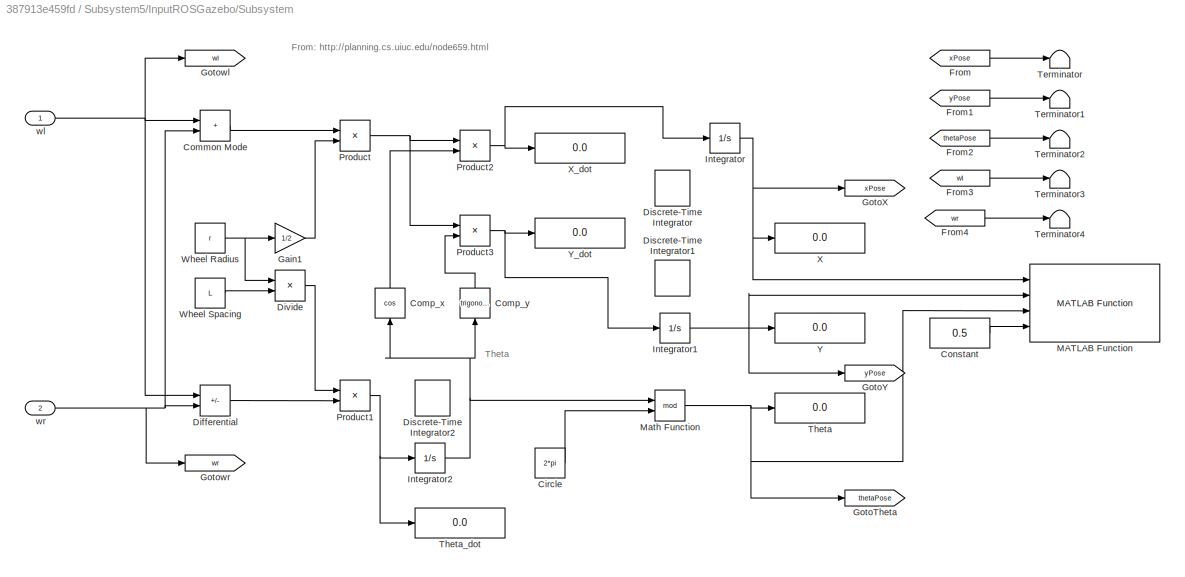
BLOCK [SubSystem] Subsystem5/InputROSGazebo/Subsystem
  Commented = on
  Ports = [2]
  RequestExecContextInheritance = off
BLOCK [Constant] Subsystem5/InputROSGazebo/Subsystem/Circle
  Value = 2*pi
BLOCK [Sum] Subsystem5/InputROSGazebo/Subsystem/Common Mode
  IconShape = rectangular
  Ports = [2, 1]
BLOCK [Trigonometry] Subsystem5/InputROSGazebo/Subsystem/Comp_x
  NameLocation = right
  Operator = cos
  Ports = [1, 1]
BLOCK [Trigonometry] Subsystem5/InputROSGazebo/Subsystem/Comp_y
  NameLocation = right
  Ports = [1, 1]
BLOCK [Constant] Subsystem5/InputROSGazebo/Subsystem/Constant
  Value = 0.5
BLOCK [Sum] Subsystem5/InputROSGazebo/Subsystem/Differential
  IconShape = rectangular
  Inputs = -+
  Ports = [2, 1]
BLOCK [DiscreteIntegrator] Subsystem5/InputROSGazebo/Subsystem/Discrete-Time Integrator
  Commented = on
  ICPrevOutput = DiscIntNeverNeededParam
  ICPrevScaledInput = DiscIntNeverNeededParam
  InitialCondition = startX
  InitialConditionSetting = Auto
  Ports = [1, 1]
  SampleTime = -1
BLOCK [DiscreteIntegrator] Subsystem5/InputROSGazebo/Subsystem/Discrete-Time Integrator1
  Commented = on
  ICPrevOutput = DiscIntNeverNeededParam
  ICPrevScaledInput = DiscIntNeverNeededParam
  InitialCondition = startY
  InitialConditionSetting = Auto
  Ports = [1, 1]
  SampleTime = -1
BLOCK [DiscreteIntegrator] Subsystem5/InputROSGazebo/Subsystem/Discrete-Time Integrator2
  Commented = on
  ICPrevOutput = DiscIntNeverNeededParam
  ICPrevScaledInput = DiscIntNeverNeededParam
  InitialCondition = startTheta*(pi/180)
  InitialConditionSetting = Auto
  Ports = [1, 1]
  SampleTime = -1
BLOCK [Product] Subsystem5/InputROSGazebo/Subsystem/Divide
  Inputs = */
  Ports = [2, 1]
BLOCK [From] Subsystem5/InputROSGazebo/Subsystem/From
  GotoTag = xPose
  TagVisibility = global
BLOCK [From] Subsystem5/InputROSGazebo/Subsystem/From1
  GotoTag = yPose
  TagVisibility = global
BLOCK [From] Subsystem5/InputROSGazebo/Subsystem/From2
  GotoTag = thetaPose
  TagVisibility = global
BLOCK [From] Subsystem5/InputROSGazebo/Subsystem/From3
  GotoTag = wl
  TagVisibility = global
BLOCK [From] Subsystem5/InputROSGazebo/Subsystem/From4
  GotoTag = wr
  TagVisibility = global
BLOCK [Gain] Subsystem5/InputROSGazebo/Subsystem/Gain1
  Gain = 1/2
BLOCK [Goto] Subsystem5/InputROSGazebo/Subsystem/GotoTheta
  GotoTag = thetaPose
  TagVisibility = global
BLOCK [Goto] Subsystem5/InputROSGazebo/Subsystem/GotoX
  GotoTag = xPose
  TagVisibility = global
BLOCK [Goto] Subsystem5/InputROSGazebo/Subsystem/GotoY
  GotoTag = yPose
  TagVisibility = global
BLOCK [Goto] Subsystem5/InputROSGazebo/Subsystem/Gotowl
  GotoTag = wl
  TagVisibility = global
BLOCK [Goto] Subsystem5/InputROSGazebo/Subsystem/Gotowr
  GotoTag = wr
  TagVisibility = global
BLOCK [Integrator] Subsystem5/InputROSGazebo/Subsystem/Integrator
  InitialCondition = currentPose(1)
  Ports = [1, 1]
BLOCK [Integrator] Subsystem5/InputROSGazebo/Subsystem/Integrator1
  InitialCondition = currentPose(2)
  Ports = [1, 1]
BLOCK [Integrator] Subsystem5/InputROSGazebo/Subsystem/Integrator2
  InitialCondition = currentPose(3)
  Ports = [1, 1]
BLOCK [Reference] Subsystem5/InputROSGazebo/Subsystem/MATLAB Function  REF=mobileRoboticsTrainingLib/Robot Simulator/MATLAB Function
  Ports = [4]
  SourceBlock = mobileRoboticsTrainingLib/Robot Simulator/MATLAB Function
  SourceProductName = Mobile Robotics Training Library
  SourceType = SubSystem
BLOCK [Math] Subsystem5/InputROSGazebo/Subsystem/Math Function
  Operator = mod
  Ports = [2, 1]
  SignedPower = on
BLOCK [Product] Subsystem5/InputROSGazebo/Subsystem/Product
  Ports = [2, 1]
  RndMeth = Zero
BLOCK [Product] Subsystem5/InputROSGazebo/Subsystem/Product1
  Ports = [2, 1]
  RndMeth = Zero
BLOCK [Product] Subsystem5/InputROSGazebo/Subsystem/Product2
  Ports = [2, 1]
  RndMeth = Zero
BLOCK [Product] Subsystem5/InputROSGazebo/Subsystem/Product3
  Ports = [2, 1]
  RndMeth = Zero
BLOCK [Terminator] Subsystem5/InputROSGazebo/Subsystem/Terminator
BLOCK [Terminator] Subsystem5/InputROSGazebo/Subsystem/Terminator1
BLOCK [Terminator] Subsystem5/InputROSGazebo/Subsystem/Terminator2
BLOCK [Terminator] Subsystem5/InputROSGazebo/Subsystem/Terminator3
BLOCK [Terminator] Subsystem5/InputROSGazebo/Subsystem/Terminator4
BLOCK [Display] Subsystem5/InputROSGazebo/Subsystem/Theta
  Decimation = 1
  Ports = [1]
BLOCK [Display] Subsystem5/InputROSGazebo/Subsystem/Theta_dot
  Decimation = 1
  Ports = [1]
BLOCK [Constant] Subsystem5/InputROSGazebo/Subsystem/Wheel Radius
  Value = r
BLOCK [Constant] Subsystem5/InputROSGazebo/Subsystem/Wheel Spacing
  Value = L
BLOCK [Display] Subsystem5/InputROSGazebo/Subsystem/X
  Decimation = 1
  Ports = [1]
BLOCK [Display] Subsystem5/InputROSGazebo/Subsystem/X_dot
  Decimation = 1
  Ports = [1]
BLOCK [Display] Subsystem5/InputROSGazebo/Subsystem/Y
  Decimation = 1
  Ports = [1]
BLOCK [Display] Subsystem5/InputROSGazebo/Subsystem/Y_dot
  Decimation = 1
  Ports = [1]
BLOCK [Inport] Subsystem5/InputROSGazebo/Subsystem/wl
BLOCK [Inport] Subsystem5/InputROSGazebo/Subsystem/wr
  Port = 2
BLOCK [Sum] Subsystem5/InputROSGazebo/Sum
  Inputs = -+|
  Ports = [2, 1]
BLOCK [Sum] Subsystem5/InputROSGazebo/Sum1
  Inputs = |+-
  Ports = [2, 1]
BLOCK [Sum] Subsystem5/InputROSGazebo/Sum2
  Inputs = -+|
  Ports = [2, 1]
BLOCK [Sum] Subsystem5/InputROSGazebo/Sum3
  Inputs = -+|
  Ports = [2, 1]
BLOCK [Terminator] Subsystem5/InputROSGazebo/Terminator
BLOCK [ToWorkspace] Subsystem5/InputROSGazebo/To Workspace2
  FixptAsFi = on
  MaxDataPoints = inf
  Ports = [1]
  SampleTime = -1
  VariableName = Pose_ros
BLOCK [Reference] Subsystem5/InputROSGazebo/XY ROS  REF=simulink/Sinks/XY Graph
  Ports = [2]
  SourceBlock = simulink/Sinks/XY Graph
  SourceProductBaseCode = SL
  SourceType = XY scope.
BLOCK [Scope] Subsystem5/InputROSGazebo/theta-Imu vs Odom
  Floating = off
  NumInputPorts = 2
  Ports = [2]
  ScopeSpecificationString = Simulink.scopes.TimeScopeBlockCfg('CurrentConfiguration', extmgr.ConfigurationSet(extmgr.Configuration('Core','General UI',true),extmgr.Configuration('Core','Source UI',true),extmgr.Configuration('Sources','WiredSimulink',true,'DataLoggingVariableName','ScopeData3'),extmgr.Configuration('Visuals','Time Domain',true,'SerializedDisplays',{struct('MinYLimReal','-2.05375','MaxYLimReal','2.26117','YLab...<+1486ch>
BLOCK [Merge] Subsystem5/InputROSGazebo/theta_ros
  Ports = [2, 1]
BLOCK [Scope] Subsystem5/InputROSGazebo/v-Gps vs Odom vs Imu
  Floating = off
  NumInputPorts = 3
  Ports = [3]
  ScopeSpecificationString = Simulink.scopes.TimeScopeBlockCfg('CurrentConfiguration', extmgr.ConfigurationSet(extmgr.Configuration('Core','General UI',true),extmgr.Configuration('Core','Source UI',true),extmgr.Configuration('Sources','WiredSimulink',true,'DataLoggingVariableName','ScopeData4'),extmgr.Configuration('Visuals','Time Domain',true,'SerializedDisplays',{struct('MinYLimReal','-0.47146','MaxYLimReal','1.14708','YLab...<+1534ch>
BLOCK [Merge] Subsystem5/InputROSGazebo/v_ros
  Ports = [2, 1]
BLOCK [Scope] Subsystem5/InputROSGazebo/vw cons vs ros
  Floating = off
  NumInputPorts = 4
  Ports = [4]
  ScopeSpecificationString = Simulink.scopes.TimeScopeBlockCfg('CurrentConfiguration', extmgr.ConfigurationSet(extmgr.Configuration('Core','General UI',true,'FigureColor',[1 1 1]),extmgr.Configuration('Core','Source UI',true),extmgr.Configuration('Sources','WiredSimulink',true,'DataLoggingVariableName','ScopeData2'),extmgr.Configuration('Visuals','Time Domain',true,'SerializedDisplays',{struct('MinYLimReal','-0.83527','MaxYLi...<+1975ch>
BLOCK [Scope] Subsystem5/InputROSGazebo/vw ros
  Floating = off
  NumInputPorts = 2
  Ports = [2]
  ScopeSpecificationString = Simulink.scopes.TimeScopeBlockCfg('CurrentConfiguration', extmgr.ConfigurationSet(extmgr.Configuration('Core','General UI',true,'FigureColor',[1 1 1]),extmgr.Configuration('Core','Source UI',true),extmgr.Configuration('Sources','WiredSimulink',true,'DataLoggingVariableName','ScopeData1'),extmgr.Configuration('Visuals','Time Domain',true,'SerializedDisplays',{struct('MinYLimReal','-0.11035','MaxYLi...<+2429ch>
BLOCK [SubSystem] Subsystem5/InputROSGazebo/vw2wLwR
  Ports = [2, 2]
  RequestExecContextInheritance = off
BLOCK [Gain] Subsystem5/InputROSGazebo/vw2wLwR/Gain10
  Gain = 1/r
BLOCK [Gain] Subsystem5/InputROSGazebo/vw2wLwR/Gain8
  Gain = L/2
BLOCK [Gain] Subsystem5/InputROSGazebo/vw2wLwR/Gain9
  Gain = 1/r
BLOCK [Sum] Subsystem5/InputROSGazebo/vw2wLwR/Sum7
  Inputs = |+-
  Ports = [2, 1]
BLOCK [Sum] Subsystem5/InputROSGazebo/vw2wLwR/Sum8
  Inputs = ++|
  Ports = [2, 1]
BLOCK [Inport] Subsystem5/InputROSGazebo/vw2wLwR/v_ros
BLOCK [Outport] Subsystem5/InputROSGazebo/vw2wLwR/wL_ros
BLOCK [Outport] Subsystem5/InputROSGazebo/vw2wLwR/wR_ros
  Port = 2
BLOCK [Inport] Subsystem5/InputROSGazebo/vw2wLwR/w_ros
  Port = 2
BLOCK [Scope] Subsystem5/InputROSGazebo/w-Gps vs Odom vs Imu
  Floating = off
  NumInputPorts = 3
  Ports = [3]
  ScopeSpecificationString = Simulink.scopes.TimeScopeBlockCfg('CurrentConfiguration', extmgr.ConfigurationSet(extmgr.Configuration('Core','General UI',true),extmgr.Configuration('Core','Source UI',true),extmgr.Configuration('Sources','WiredSimulink',true,'DataLoggingVariableName','ScopeData5'),extmgr.Configuration('Visuals','Time Domain',true,'SerializedDisplays',{struct('MinYLimReal','-1.12727','MaxYLimReal','1.1748','YLabe...<+1547ch>
BLOCK [Outport] Subsystem5/InputROSGazebo/wL_ros
  Port = 4
BLOCK [Scope] Subsystem5/InputROSGazebo/wLwR ros
  Floating = off
  NumInputPorts = 2
  Ports = [2]
  ScopeSpecificationString = Simulink.scopes.TimeScopeBlockCfg('CurrentConfiguration', extmgr.ConfigurationSet(extmgr.Configuration('Core','General UI',true),extmgr.Configuration('Core','Source UI',true),extmgr.Configuration('Sources','WiredSimulink',true,'DataLoggingVariableName','ScopeData4'),extmgr.Configuration('Visuals','Time Domain',true,'SerializedDisplays',{struct('MinYLimReal','-1.33643','MaxYLimReal','9.09771','YLab...<+1572ch>
BLOCK [Outport] Subsystem5/InputROSGazebo/wR_ros
  Port = 5
BLOCK [Merge] Subsystem5/InputROSGazebo/w_ros
  Ports = [2, 1]
BLOCK [Scope] Subsystem5/InputROSGazebo/x-Gps vs Odom
  Floating = off
  NumInputPorts = 2
  Ports = [2]
  ScopeSpecificationString = Simulink.scopes.TimeScopeBlockCfg('CurrentConfiguration', extmgr.ConfigurationSet(extmgr.Configuration('Core','General UI',true,'FigureColor',[1 1 1]),extmgr.Configuration('Core','Source UI',true),extmgr.Configuration('Sources','WiredSimulink',true,'DataLoggingVariableName','ScopeData1'),extmgr.Configuration('Visuals','Time Domain',true,'SerializedDisplays',{struct('MinYLimReal','-4.27582','MaxYLi...<+1654ch>
BLOCK [Merge] Subsystem5/InputROSGazebo/x_ros
  Ports = [2, 1]
BLOCK [Scope] Subsystem5/InputROSGazebo/y-Gps vs Odom
  Floating = off
  NumInputPorts = 2
  Ports = [2]
  ScopeSpecificationString = Simulink.scopes.TimeScopeBlockCfg('CurrentConfiguration', extmgr.ConfigurationSet(extmgr.Configuration('Core','General UI',true,'FigureColor',[1 1 1]),extmgr.Configuration('Core','Source UI',true),extmgr.Configuration('Sources','WiredSimulink',true,'DataLoggingVariableName','ScopeData2'),extmgr.Configuration('Visuals','Time Domain',true,'SerializedDisplays',{struct('MinYLimReal','-4.13508','MaxYLi...<+1696ch>
BLOCK [Merge] Subsystem5/InputROSGazebo/y_ros
  Ports = [2, 1]
BLOCK [Outport] Subsystem5/Out1
  Port = 2
BLOCK [Outport] Subsystem5/Out2
BLOCK [SubSystem] Subsystem6
  Ports = [0, 1]
  RequestExecContextInheritance = off
BLOCK [Constant] Subsystem6/ 
  Value = waypoints
BLOCK [BusCreator] Subsystem6/Bus Creator
  DisplayOption = bar
  InheritFromInputs = on
  Inputs = 3
  Ports = [3, 1]
BLOCK [From] Subsystem6/From1
  GotoTag = Pose_ros
  TagVisibility = global
BLOCK [Constant] Subsystem6/Goal Pose
  Value = goalPose
BLOCK [Outport] Subsystem6/Out1
BLOCK [Terminator] Terminator
  Commented = on
BLOCK [Terminator] Terminator1
  Commented = on
BLOCK [ToWorkspace] To Workspace
  Commented = on
  FixptAsFi = on
  MaxDataPoints = inf
  Ports = [1]
  SampleTime = -1
  VariableName = Pose
BLOCK [ToWorkspace] To Workspace1
  Commented = on
  FixptAsFi = on
  MaxDataPoints = inf
  Ports = [1]
  SampleTime = -1
  VariableName = Pose1
BLOCK [Reference] XY Graph  REF=simulink/Sinks/XY Graph
  Commented = on
  Ports = [2]
  SourceBlock = simulink/Sinks/XY Graph
  SourceProductBaseCode = SL
  SourceType = XY scope.
BLOCK [Reference] XY Graph1  REF=simulink/Sinks/XY Graph
  Commented = on
  Ports = [2]
  SourceBlock = simulink/Sinks/XY Graph
  SourceProductBaseCode = SL
  SourceType = XY scope.
BLOCK [Scope] x
  Commented = on
  Floating = off
  NumInputPorts = 1
  Ports = [1]
  ScopeSpecificationString = Simulink.scopes.TimeScopeBlockCfg('CurrentConfiguration', extmgr.ConfigurationSet(extmgr.Configuration('Core','General UI',true),extmgr.Configuration('Core','Source UI',true),extmgr.Configuration('Sources','WiredSimulink',true,'DataLoggingVariableName','ScopeData3'),extmgr.Configuration('Visuals','Time Domain',true,'SerializedDisplays',{struct('MinYLimReal','-2.02829','MaxYLimReal','33.2546','YLab...<+1442ch>
BLOCK [Scope] x1
  Commented = on
  Floating = off
  NumInputPorts = 1
  Ports = [1]
  ScopeSpecificationString = Simulink.scopes.TimeScopeBlockCfg('CurrentConfiguration', extmgr.ConfigurationSet(extmgr.Configuration('Core','General UI',true),extmgr.Configuration('Core','Source UI',true),extmgr.Configuration('Sources','WiredSimulink',true,'DataLoggingVariableName','ScopeData1'),extmgr.Configuration('Visuals','Time Domain',true,'SerializedDisplays',{struct('MinYLimReal','13.28681','MaxYLimReal','24.29252','YLa...<+1448ch>
BLOCK [Scope] y
  Commented = on
  Floating = off
  NumInputPorts = 1
  Ports = [1]
  ScopeSpecificationString = Simulink.scopes.TimeScopeBlockCfg('CurrentConfiguration', extmgr.ConfigurationSet(extmgr.Configuration('Core','General UI',true),extmgr.Configuration('Core','Source UI',true),extmgr.Configuration('Sources','WiredSimulink',true,'DataLoggingVariableName','ScopeData4'),extmgr.Configuration('Visuals','Time Domain',true,'SerializedDisplays',{struct('MinYLimReal','-1.99735','MaxYLimReal','24.97612','YLa...<+1449ch>
BLOCK [Scope] y1
  Commented = on
  Floating = off
  NumInputPorts = 1
  Ports = [1]
  ScopeSpecificationString = Simulink.scopes.TimeScopeBlockCfg('CurrentConfiguration', extmgr.ConfigurationSet(extmgr.Configuration('Core','General UI',true),extmgr.Configuration('Core','Source UI',true),extmgr.Configuration('Sources','WiredSimulink',true,'DataLoggingVariableName','ScopeData2'),extmgr.Configuration('Visuals','Time Domain',true,'SerializedDisplays',{struct('MinYLimReal','1.158','MaxYLimReal','9.57804','YLabelR...<+1437ch>
ANNOTATION (root): Cinemática Directa del Robot
ANNOTATION (root): Controller
ANNOTATION (root): Motion Planning
ANNOTATION (root): Path Planning
ANNOTATION (root): Perception
ANNOTATION (root): Simulation
ANNOTATION Subsystem: wL
ANNOTATION Subsystem: wR
ANNOTATION Subsystem/OutputROSGazebo: vR
ANNOTATION Subsystem1: Controller
ANNOTATION Subsystem1: System (Dynamics)
ANNOTATION Subsystem4: Motion Planning
ANNOTATION Subsystem4/Check Distance To Goal: Distance from Goal to satisfy that the robot has reached the goal
ANNOTATION Subsystem5/InputROSGazebo: DGPS BASE
ANNOTATION Subsystem5/InputROSGazebo: DGPS ROBOT POS
ANNOTATION Subsystem5/InputROSGazebo: DGPS ROBOT VEL
ANNOTATION Subsystem5/InputROSGazebo: IMU
ANNOTATION Subsystem5/InputROSGazebo: LIDAR
ANNOTATION Subsystem5/InputROSGazebo: ODOMETRY
ANNOTATION Subsystem5/InputROSGazebo: SENSOR FUSION
ANNOTATION Subsystem5/InputROSGazebo/Subsystem: From: http://planning.cs.uiuc.edu/node659.html
ANNOTATION Subsystem5/InputROSGazebo/Subsystem: Theta
NET Differential Drive Kinematic Model1:1 -> Display:1, Selector1:1, Selector:1, To Workspace:1
LINE Differential Drive Kinematic Model1:2 -> Terminator:1
NET Differential Drive Kinematic Model2:1 -> Display1:1, Goto4:1, Selector2:1, Selector3:1, To Workspace1:1
LINE Differential Drive Kinematic Model2:2 -> Terminator1:1
NET Selector1:1 -> XY Graph:2, y:1
NET Selector2:1 -> XY Graph1:1, x1:1
NET Selector3:1 -> XY Graph1:2, y1:1
NET Selector:1 -> XY Graph:1, x:1
LINE Subscribe1:1 -> Subsystem2:enable
LINE Subscribe1:2 -> Subsystem2:1
LINE Subscribe2:1 -> Subsystem3:enable
LINE Subscribe2:2 -> Subsystem3:1
LINE Subsystem/Bus Selector1:1 -> Subsystem/OutputROSGazebo:2
LINE Subsystem/Bus Selector1:2 -> Subsystem/OutputROSGazebo:3
LINE Subsystem/From8:1 -> Subsystem/OutputROSGazebo:enable
LINE Subsystem/From:1 -> Subsystem/OutputROSGazebo:1
LINE Subsystem/In1:1 -> Subsystem/Bus Selector1:1
LINE Subsystem/OutputROSGazebo/Blank Message1:1 -> Subsystem/OutputROSGazebo/Bus Assignment1:1
LINE Subsystem/OutputROSGazebo/Bus Assignment1:1 -> Subsystem/OutputROSGazebo/Publish1:1
NET Subsystem/OutputROSGazebo/Gain1:1 -> Subsystem/OutputROSGazebo/Sum3:1, Subsystem/OutputROSGazebo/Sum4:1
NET Subsystem/OutputROSGazebo/Gain2:1 -> Subsystem/OutputROSGazebo/Sum3:2, Subsystem/OutputROSGazebo/Sum4:2
NET Subsystem/OutputROSGazebo/Gain3:1 -> Subsystem/OutputROSGazebo/Mux4:1, Subsystem/OutputROSGazebo/Product:1
NET Subsystem/OutputROSGazebo/Gain4:1 -> Subsystem/OutputROSGazebo/Mux4:2, Subsystem/OutputROSGazebo/Product1:2
LINE Subsystem/OutputROSGazebo/Mux4:1 -> Subsystem/OutputROSGazebo/To Workspace3:1
NET Subsystem/OutputROSGazebo/Product1:1 -> Subsystem/OutputROSGazebo/Bus Assignment1:3, Subsystem/OutputROSGazebo/v vs w:2
NET Subsystem/OutputROSGazebo/Product:1 -> Subsystem/OutputROSGazebo/Bus Assignment1:2, Subsystem/OutputROSGazebo/v vs w:1
LINE Subsystem/OutputROSGazebo/Sum3:1 -> Subsystem/OutputROSGazebo/Gain3:1
LINE Subsystem/OutputROSGazebo/Sum4:1 -> Subsystem/OutputROSGazebo/Gain4:1
NET Subsystem/OutputROSGazebo/atGoal:1 -> Subsystem/OutputROSGazebo/Product1:1, Subsystem/OutputROSGazebo/Product:2
LINE Subsystem/OutputROSGazebo/wL:1 -> Subsystem/OutputROSGazebo/Gain1:1
LINE Subsystem/OutputROSGazebo/wR:1 -> Subsystem/OutputROSGazebo/Gain2:1
LINE Subsystem1/Bus Creator:1 -> Subsystem1/Out1:1
LINE Subsystem1/Bus Selector:1 -> Subsystem1/Subsystem:1
LINE Subsystem1/Bus Selector:2 -> Subsystem1/Subsystem:2
LINE Subsystem1/Coef. Fricción Viscosa:1 -> Subsystem1/Dinamica Directa:6
NET Subsystem1/Constant:1 -> Subsystem1/Dinamica Directa:3, Subsystem1/Masa Agregada:1, Subsystem1/Sensor_M:1
LINE Subsystem1/Dinamica Directa/Alfa:1 -> Subsystem1/Dinamica Directa/MATLAB Function:5
LINE Subsystem1/Dinamica Directa/MATLAB Function:1 -> Subsystem1/Dinamica Directa/ddthetaL:1
LINE Subsystem1/Dinamica Directa/MATLAB Function:2 -> Subsystem1/Dinamica Directa/ddthetaR:1
LINE Subsystem1/Dinamica Directa/M_ag:1 -> Subsystem1/Dinamica Directa/MATLAB Function:3
LINE Subsystem1/Dinamica Directa/Mux:1 -> Subsystem1/Dinamica Directa/MATLAB Function:4
LINE Subsystem1/Dinamica Directa/tauFr_L:1 -> Subsystem1/Dinamica Directa/Mux:2
LINE Subsystem1/Dinamica Directa/tauFr_R:1 -> Subsystem1/Dinamica Directa/Mux:1
LINE Subsystem1/Dinamica Directa/tauRu_L:1 -> Subsystem1/Dinamica Directa/MATLAB Function:1
LINE Subsystem1/Dinamica Directa/tauRu_R:1 -> Subsystem1/Dinamica Directa/MATLAB Function:2
LINE Subsystem1/Dinamica Directa:1 -> Subsystem1/Integrator:1
LINE Subsystem1/Dinamica Directa:2 -> Subsystem1/Integrator1:1
LINE Subsystem1/Dinamica Inversa/MATLAB Function:1 -> Subsystem1/Dinamica Inversa/tauTot_L*:1
LINE Subsystem1/Dinamica Inversa/MATLAB Function:2 -> Subsystem1/Dinamica Inversa/tauTot_R*:1
LINE Subsystem1/Dinamica Inversa/M_ag^f:1 -> Subsystem1/Dinamica Inversa/MATLAB Function:3
LINE Subsystem1/Dinamica Inversa/ddthetaL*:1 -> Subsystem1/Dinamica Inversa/MATLAB Function:1
LINE Subsystem1/Dinamica Inversa/ddthetaR*:1 -> Subsystem1/Dinamica Inversa/MATLAB Function:2
NET Subsystem1/Dinamica Inversa:1 -> Subsystem1/Inversa Reductor_L:1, Subsystem1/Torques Ru L:1
NET Subsystem1/Dinamica Inversa:2 -> Subsystem1/Inversa Reductor_R:1, Subsystem1/Torques Ru R:1
LINE Subsystem1/Filtro PB Masa/Filtro PB Lento:1 -> Subsystem1/Filtro PB Masa/M_ag^f:1
LINE Subsystem1/Filtro PB Masa/M_ag^:1 -> Subsystem1/Filtro PB Masa/Filtro PB Lento:1
NET Subsystem1/Filtro PB Masa:1 -> Subsystem1/Dinamica Inversa:3, Subsystem1/Masa Agregada:3
NET Subsystem1/From6:1 -> Subsystem1/Gain:1, Subsystem1/Inv. Red. L:1, Subsystem1/Reduc. L:1, Subsystem1/Sum:1
NET Subsystem1/From7:1 -> Subsystem1/Coef. Fricción Viscosa:1, Subsystem1/Inv. Red. R:1, Subsystem1/Reduc. R:1, Subsystem1/Sum1:2
LINE Subsystem1/Gain:1 -> Subsystem1/Dinamica Directa:4
LINE Subsystem1/In1:1 -> Subsystem1/Bus Selector:1
LINE Subsystem1/Integrator1:1 -> Subsystem1/Bus Creator:2
LINE Subsystem1/Integrator:1 -> Subsystem1/Bus Creator:1
LINE Subsystem1/Inv. Red. L:1 -> Subsystem1/Tensión y Motores:3
LINE Subsystem1/Inv. Red. R:1 -> Subsystem1/Tensión y Motores:4
LINE Subsystem1/Inversa Reductor_L:1 -> Subsystem1/Torque y Corriente:1
LINE Subsystem1/Inversa Reductor_R:1 -> Subsystem1/Torque y Corriente:2
LINE Subsystem1/PID Controller3:1 -> Subsystem1/Dinamica Inversa:1
LINE Subsystem1/PID Controller4:1 -> Subsystem1/Dinamica Inversa:2
LINE Subsystem1/Reduc. L:1 -> Subsystem1/Torque y Corriente:3
LINE Subsystem1/Reduc. R:1 -> Subsystem1/Torque y Corriente:4
NET Subsystem1/Reductor_L:1 -> Subsystem1/Dinamica Directa:1, Subsystem1/Torques Ru L:2
NET Subsystem1/Reductor_R:1 -> Subsystem1/Dinamica Directa:2, Subsystem1/Torques Ru R:2
LINE Subsystem1/Sensor_M/Gain:1 -> Subsystem1/Sensor_M/Sum:1
LINE Subsystem1/Sensor_M/M_ag:1 -> Subsystem1/Sensor_M/Sum:2
LINE Subsystem1/Sensor_M/Resolución:1 -> Subsystem1/Sensor_M/Retardo:1
LINE Subsystem1/Sensor_M/Retardo:1 -> Subsystem1/Sensor_M/M_ag^:1
LINE Subsystem1/Sensor_M/Ruido:1 -> Subsystem1/Sensor_M/Gain:1
LINE Subsystem1/Sensor_M/Sum:1 -> Subsystem1/Sensor_M/Resolución:1
NET Subsystem1/Sensor_M:1 -> Subsystem1/Filtro PB Masa:1, Subsystem1/Masa Agregada:2
LINE Subsystem1/Sensores de Corriente/ :1 -> Subsystem1/Sensores de Corriente/Resolución1:1
LINE Subsystem1/Sensores de Corriente/Filtro PB 1° Orden:1 -> Subsystem1/Sensores de Corriente/Resolución:1
LINE Subsystem1/Sensores de Corriente/Resolución1:1 -> Subsystem1/Sensores de Corriente/Ret.:1
LINE Subsystem1/Sensores de Corriente/Resolución:1 -> Subsystem1/Sensores de Corriente/Retardo:1
LINE Subsystem1/Sensores de Corriente/Ret.:1 -> Subsystem1/Sensores de Corriente/iR^:1
LINE Subsystem1/Sensores de Corriente/Retardo:1 -> Subsystem1/Sensores de Corriente/iL^:1
LINE Subsystem1/Sensores de Corriente/iL:1 -> Subsystem1/Sensores de Corriente/Filtro PB 1° Orden:1
LINE Subsystem1/Sensores de Corriente/iR:1 -> Subsystem1/Sensores de Corriente/ :1
LINE Subsystem1/Sensores de Corriente:1 -> Subsystem1/Torque y Corriente:6
LINE Subsystem1/Sensores de Corriente:2 -> Subsystem1/Torque y Corriente:5
LINE Subsystem1/Subsystem/Gain1:1 -> Subsystem1/Subsystem/dthetaL*:1
LINE Subsystem1/Subsystem/Gain2:1 -> Subsystem1/Subsystem/dthetaR*:1
NET Subsystem1/Subsystem/Gain:1 -> Subsystem1/Subsystem/Sum1:1, Subsystem1/Subsystem/Sum:2
LINE Subsystem1/Subsystem/Sum1:1 -> Subsystem1/Subsystem/Gain2:1
LINE Subsystem1/Subsystem/Sum:1 -> Subsystem1/Subsystem/Gain1:1
NET Subsystem1/Subsystem/v*:1 -> Subsystem1/Subsystem/Sum1:2, Subsystem1/Subsystem/Sum:1
LINE Subsystem1/Subsystem/w*:1 -> Subsystem1/Subsystem/Gain:1
LINE Subsystem1/Subsystem:1 -> Subsystem1/Sum:2
LINE Subsystem1/Subsystem:2 -> Subsystem1/Sum1:1
NET Subsystem1/Sum1:1 -> Subsystem1/Errores dtheta:2, Subsystem1/PID Controller4:1
NET Subsystem1/Sum:1 -> Subsystem1/Errores dtheta:1, Subsystem1/PID Controller3:1
LINE Subsystem1/Tensión y Motores/Modulador de Tensión/Filtro PB 1° Orden:1 -> Subsystem1/Tensión y Motores/Modulador de Tensión/Saturación:1
LINE Subsystem1/Tensión y Motores/Modulador de Tensión/Filtro:1 -> Subsystem1/Tensión y Motores/Modulador de Tensión/Saturation:1
LINE Subsystem1/Tensión y Motores/Modulador de Tensión/Saturación:1 -> Subsystem1/Tensión y Motores/Modulador de Tensión/Va_mL:1
LINE Subsystem1/Tensión y Motores/Modulador de Tensión/Saturation:1 -> Subsystem1/Tensión y Motores/Modulador de Tensión/Va_mR:1
LINE Subsystem1/Tensión y Motores/Modulador de Tensión/Va_mL*:1 -> Subsystem1/Tensión y Motores/Modulador de Tensión/Filtro PB 1° Orden:1
LINE Subsystem1/Tensión y Motores/Modulador de Tensión/Va_mR*:1 -> Subsystem1/Tensión y Motores/Modulador de Tensión/Filtro:1
LINE Subsystem1/Tensión y Motores/Modulador de Tensión:1 -> Subsystem1/Tensión y Motores/Motores:1
LINE Subsystem1/Tensión y Motores/Modulador de Tensión:2 -> Subsystem1/Tensión y Motores/Motores:2
LINE Subsystem1/Tensión y Motores/Motores/Demux1:1 -> Subsystem1/Tensión y Motores/Motores/Tau_mL:1
LINE Subsystem1/Tensión y Motores/Motores/Demux1:2 -> Subsystem1/Tensión y Motores/Motores/Tau_mR:1
LINE Subsystem1/Tensión y Motores/Motores/Demux:1 -> Subsystem1/Tensión y Motores/Motores/iL:1
LINE Subsystem1/Tensión y Motores/Motores/Demux:2 -> Subsystem1/Tensión y Motores/Motores/iR:1
LINE Subsystem1/Tensión y Motores/Motores/Gain1:1 -> Subsystem1/Tensión y Motores/Motores/Demux1:1
NET Subsystem1/Tensión y Motores/Motores/Gain2:1 -> Subsystem1/Tensión y Motores/Motores/Demux:1, Subsystem1/Tensión y Motores/Motores/Gain1:1
LINE Subsystem1/Tensión y Motores/Motores/Gain:1 -> Subsystem1/Tensión y Motores/Motores/Sum:2
LINE Subsystem1/Tensión y Motores/Motores/Mux1:1 -> Subsystem1/Tensión y Motores/Motores/Gain:1
LINE Subsystem1/Tensión y Motores/Motores/Mux:1 -> Subsystem1/Tensión y Motores/Motores/Sum:1
LINE Subsystem1/Tensión y Motores/Motores/Sum:1 -> Subsystem1/Tensión y Motores/Motores/Gain2:1
LINE Subsystem1/Tensión y Motores/Motores/Va_mL:1 -> Subsystem1/Tensión y Motores/Motores/Mux:1
LINE Subsystem1/Tensión y Motores/Motores/Va_mR:1 -> Subsystem1/Tensión y Motores/Motores/Mux:2
LINE Subsystem1/Tensión y Motores/Motores/dtheta_mL:1 -> Subsystem1/Tensión y Motores/Motores/Mux1:1
LINE Subsystem1/Tensión y Motores/Motores/dtheta_mR:1 -> Subsystem1/Tensión y Motores/Motores/Mux1:2
LINE Subsystem1/Tensión y Motores/Motores:1 -> Subsystem1/Tensión y Motores/Tau_mL:1
LINE Subsystem1/Tensión y Motores/Motores:2 -> Subsystem1/Tensión y Motores/Tau_mR:1
LINE Subsystem1/Tensión y Motores/Motores:3 -> Subsystem1/Tensión y Motores/iR:1
LINE Subsystem1/Tensión y Motores/Motores:4 -> Subsystem1/Tensión y Motores/iL:1
LINE Subsystem1/Tensión y Motores/Va_mL*:1 -> Subsystem1/Tensión y Motores/Modulador de Tensión:1
LINE Subsystem1/Tensión y Motores/Va_mR*:1 -> Subsystem1/Tensión y Motores/Modulador de Tensión:2
LINE Subsystem1/Tensión y Motores/dtheta_mL:1 -> Subsystem1/Tensión y Motores/Motores:3
LINE Subsystem1/Tensión y Motores/dtheta_mR:1 -> Subsystem1/Tensión y Motores/Motores:4
LINE Subsystem1/Tensión y Motores:1 -> Subsystem1/Reductor_L:1
LINE Subsystem1/Tensión y Motores:2 -> Subsystem1/Reductor_R:1
LINE Subsystem1/Tensión y Motores:3 -> Subsystem1/Sensores de Corriente:1
LINE Subsystem1/Tensión y Motores:4 -> Subsystem1/Sensores de Corriente:2
LINE Subsystem1/Torque y Corriente/Desacople/Demux:1 -> Subsystem1/Torque y Corriente/Desacople/Va_mL*:1
LINE Subsystem1/Torque y Corriente/Desacople/Demux:2 -> Subsystem1/Torque y Corriente/Desacople/Va_mR*:1
LINE Subsystem1/Torque y Corriente/Desacople/Gain1:1 -> Subsystem1/Torque y Corriente/Desacople/Sum:2
LINE Subsystem1/Torque y Corriente/Desacople/Mux1:1 -> Subsystem1/Torque y Corriente/Desacople/Gain1:1
LINE Subsystem1/Torque y Corriente/Desacople/Mux:1 -> Subsystem1/Torque y Corriente/Desacople/Sum:1
LINE Subsystem1/Torque y Corriente/Desacople/Sum:1 -> Subsystem1/Torque y Corriente/Desacople/Demux:1
LINE Subsystem1/Torque y Corriente/Desacople/Va_mL*':1 -> Subsystem1/Torque y Corriente/Desacople/Mux:1
LINE Subsystem1/Torque y Corriente/Desacople/Va_mR*':1 -> Subsystem1/Torque y Corriente/Desacople/Mux:2
LINE Subsystem1/Torque y Corriente/Desacople/dtheta_mL^:1 -> Subsystem1/Torque y Corriente/Desacople/Mux1:1
LINE Subsystem1/Torque y Corriente/Desacople/dtheta_mR^:1 -> Subsystem1/Torque y Corriente/Desacople/Mux1:2
LINE Subsystem1/Torque y Corriente/Desacople:1 -> Subsystem1/Torque y Corriente/Va_mL*:1
LINE Subsystem1/Torque y Corriente/Desacople:2 -> Subsystem1/Torque y Corriente/Va_mR*:1
LINE Subsystem1/Torque y Corriente/Modulador de Corriente/Control Proporcional:1 -> Subsystem1/Torque y Corriente/Modulador de Corriente/Demux:1
LINE Subsystem1/Torque y Corriente/Modulador de Corriente/Demux:1 -> Subsystem1/Torque y Corriente/Modulador de Corriente/Va_mL*':1
LINE Subsystem1/Torque y Corriente/Modulador de Corriente/Demux:2 -> Subsystem1/Torque y Corriente/Modulador de Corriente/Va_mR*':1
LINE Subsystem1/Torque y Corriente/Modulador de Corriente/Mux:1 -> Subsystem1/Torque y Corriente/Modulador de Corriente/Control Proporcional:1
LINE Subsystem1/Torque y Corriente/Modulador de Corriente/Sum1:1 -> Subsystem1/Torque y Corriente/Modulador de Corriente/Mux:2
LINE Subsystem1/Torque y Corriente/Modulador de Corriente/Sum:1 -> Subsystem1/Torque y Corriente/Modulador de Corriente/Mux:1
LINE Subsystem1/Torque y Corriente/Modulador de Corriente/iL* :1 -> Subsystem1/Torque y Corriente/Modulador de Corriente/Sum:2
LINE Subsystem1/Torque y Corriente/Modulador de Corriente/iL^:1 -> Subsystem1/Torque y Corriente/Modulador de Corriente/Sum:1
LINE Subsystem1/Torque y Corriente/Modulador de Corriente/iR*:1 -> Subsystem1/Torque y Corriente/Modulador de Corriente/Sum1:1
LINE Subsystem1/Torque y Corriente/Modulador de Corriente/iR^:1 -> Subsystem1/Torque y Corriente/Modulador de Corriente/Sum1:2
LINE Subsystem1/Torque y Corriente/Modulador de Corriente:1 -> Subsystem1/Torque y Corriente/Desacople:1
LINE Subsystem1/Torque y Corriente/Modulador de Corriente:2 -> Subsystem1/Torque y Corriente/Desacople:2
LINE Subsystem1/Torque y Corriente/Modulador de Torque/Demux:1 -> Subsystem1/Torque y Corriente/Modulador de Torque/iL*:1
LINE Subsystem1/Torque y Corriente/Modulador de Torque/Demux:2 -> Subsystem1/Torque y Corriente/Modulador de Torque/iR*:1
LINE Subsystem1/Torque y Corriente/Modulador de Torque/Gain:1 -> Subsystem1/Torque y Corriente/Modulador de Torque/Demux:1
LINE Subsystem1/Torque y Corriente/Modulador de Torque/Mux:1 -> Subsystem1/Torque y Corriente/Modulador de Torque/Saturation:1
LINE Subsystem1/Torque y Corriente/Modulador de Torque/Saturation:1 -> Subsystem1/Torque y Corriente/Modulador de Torque/Gain:1
LINE Subsystem1/Torque y Corriente/Modulador de Torque/Tau_mL*:1 -> Subsystem1/Torque y Corriente/Modulador de Torque/Mux:1
LINE Subsystem1/Torque y Corriente/Modulador de Torque/Tau_mR*:1 -> Subsystem1/Torque y Corriente/Modulador de Torque/Mux:2
LINE Subsystem1/Torque y Corriente/Modulador de Torque:1 -> Subsystem1/Torque y Corriente/Modulador de Corriente:1
LINE Subsystem1/Torque y Corriente/Modulador de Torque:2 -> Subsystem1/Torque y Corriente/Modulador de Corriente:2
LINE Subsystem1/Torque y Corriente/Tau_mL*:1 -> Subsystem1/Torque y Corriente/Modulador de Torque:1
LINE Subsystem1/Torque y Corriente/Tau_mR*:1 -> Subsystem1/Torque y Corriente/Modulador de Torque:2
LINE Subsystem1/Torque y Corriente/dtheta_mL^:1 -> Subsystem1/Torque y Corriente/Desacople:3
LINE Subsystem1/Torque y Corriente/dtheta_mR^:1 -> Subsystem1/Torque y Corriente/Desacople:4
LINE Subsystem1/Torque y Corriente/iL^:1 -> Subsystem1/Torque y Corriente/Modulador de Corriente:3
LINE Subsystem1/Torque y Corriente/iR^:1 -> Subsystem1/Torque y Corriente/Modulador de Corriente:4
LINE Subsystem1/Torque y Corriente:1 -> Subsystem1/Tensión y Motores:1
LINE Subsystem1/Torque y Corriente:2 -> Subsystem1/Tensión y Motores:2
NET Subsystem1/Áng. Pendiente/Add:1 -> Subsystem1/Áng. Pendiente/Alfa:1, Subsystem1/Áng. Pendiente/Scope:1
LINE Subsystem1/Áng. Pendiente/Bajada:1 -> Subsystem1/Áng. Pendiente/Add:3
LINE Subsystem1/Áng. Pendiente/Plano Abajo:1 -> Subsystem1/Áng. Pendiente/Add:4
LINE Subsystem1/Áng. Pendiente/Plano Arriba:1 -> Subsystem1/Áng. Pendiente/Add:2
LINE Subsystem1/Áng. Pendiente/Subida:1 -> Subsystem1/Áng. Pendiente/Add:1
NET Subsystem1/Áng. Pendiente:1 -> Subsystem1/Dinamica Directa:5, Subsystem1/Pendiente:1
LINE Subsystem1:1 -> Subsystem:1
NET Subsystem2/Bus Selector:1 -> Subsystem2/XY Graph2:1, Subsystem2/x2:1, Subsystem2/x_ros:1
NET Subsystem2/Bus Selector:2 -> Subsystem2/XY Graph2:2, Subsystem2/y_ros:1
LINE Subsystem2/In1:1 -> Subsystem2/Bus Selector:1
LINE Subsystem2:1 -> Mux1:1
LINE Subsystem2:2 -> Mux1:2
LINE Subsystem3/Bus Selector:1 -> Subsystem3/angZ_ros:1
LINE Subsystem3/In1:1 -> Subsystem3/Bus Selector:1
LINE Subsystem3:1 -> Mux1:3
LINE Subsystem4/1:1 -> Subsystem4/Bus Selector:1
LINE Subsystem4/Bus Creator:1 -> Subsystem4/v* w*:1
LINE Subsystem4/Bus Selector:1 -> Subsystem4/Check Distance To Goal:1
NET Subsystem4/Bus Selector:2 -> Subsystem4/Check Distance To Goal:2, Subsystem4/Global Navigation:1
LINE Subsystem4/Bus Selector:3 -> Subsystem4/Global Navigation:2
LINE Subsystem4/Check Distance To Goal/Constant:1 -> Subsystem4/Check Distance To Goal/Less Than:2
LINE Subsystem4/Check Distance To Goal/Dot Product:1 -> Subsystem4/Check Distance To Goal/Sqrt:1
LINE Subsystem4/Check Distance To Goal/Less Than:1 -> Subsystem4/Check Distance To Goal/atGoal:1
LINE Subsystem4/Check Distance To Goal/Selector1:1 -> Subsystem4/Check Distance To Goal/Subtract:2
LINE Subsystem4/Check Distance To Goal/Selector:1 -> Subsystem4/Check Distance To Goal/Subtract:1
LINE Subsystem4/Check Distance To Goal/Sqrt:1 -> Subsystem4/Check Distance To Goal/Less Than:1
NET Subsystem4/Check Distance To Goal/Subtract:1 -> Subsystem4/Check Distance To Goal/Dot Product:1, Subsystem4/Check Distance To Goal/Dot Product:2
LINE Subsystem4/Check Distance To Goal/currentPose:1 -> Subsystem4/Check Distance To Goal/Selector:1
LINE Subsystem4/Check Distance To Goal/robotGoal:1 -> Subsystem4/Check Distance To Goal/Selector1:1
NET Subsystem4/Check Distance To Goal:1 -> Subsystem4/Goto5:1, Subsystem4/Zero-Velocity At Goal:1
LINE Subsystem4/From2:1 -> Subsystem4/Vector Field Histogram:1
LINE Subsystem4/From3:1 -> Subsystem4/Vector Field Histogram:2
NET Subsystem4/Global Navigation:1 -> Subsystem4/Local Navigation:1, Subsystem4/Zero-Velocity At Goal:2
NET Subsystem4/Global Navigation:2 -> Subsystem4/Local Navigation:2, Subsystem4/Zero-Velocity At Goal:3
LINE Subsystem4/Global Navigation:3 -> Subsystem4/Vector Field Histogram:3
NET Subsystem4/Local Navigation/AngVel:1 -> Subsystem4/Local Navigation/Path Following:2, Subsystem4/Local Navigation/Recovery:2
LINE Subsystem4/Local Navigation/If:1 -> Subsystem4/Local Navigation/Recovery:ifaction
LINE Subsystem4/Local Navigation/If:2 -> Subsystem4/Local Navigation/Path Following:ifaction
LINE Subsystem4/Local Navigation/LinVel:1 -> Subsystem4/Local Navigation/Recovery:1
LINE Subsystem4/Local Navigation/Merge1:1 -> Subsystem4/Local Navigation/DeltaW:1
LINE Subsystem4/Local Navigation/Merge:1 -> Subsystem4/Local Navigation/DeltaV:1
LINE Subsystem4/Local Navigation/Path Following/AngularVelocity:1 -> Subsystem4/Local Navigation/Path Following/Subtract:2
LINE Subsystem4/Local Navigation/Path Following/Compute Angular Velocity:1 -> Subsystem4/Local Navigation/Path Following/Subtract:1
LINE Subsystem4/Local Navigation/Path Following/Constant:1 -> Subsystem4/Local Navigation/Path Following/dV:1
LINE Subsystem4/Local Navigation/Path Following/MaxAngularVelocity:1 -> Subsystem4/Local Navigation/Path Following/Compute Angular Velocity:2
LINE Subsystem4/Local Navigation/Path Following/SteeringDirection:1 -> Subsystem4/Local Navigation/Path Following/Compute Angular Velocity:1
LINE Subsystem4/Local Navigation/Path Following/Subtract:1 -> Subsystem4/Local Navigation/Path Following/dW:1
LINE Subsystem4/Local Navigation/Path Following:1 -> Subsystem4/Local Navigation/Merge:2
LINE Subsystem4/Local Navigation/Path Following:2 -> Subsystem4/Local Navigation/Merge1:2
LINE Subsystem4/Local Navigation/Recovery/AngVel:1 -> Subsystem4/Local Navigation/Recovery/Subtract:2
LINE Subsystem4/Local Navigation/Recovery/Constant1:1 -> Subsystem4/Local Navigation/Recovery/Subtract:1
LINE Subsystem4/Local Navigation/Recovery/Gain:1 -> Subsystem4/Local Navigation/Recovery/dV:1
LINE Subsystem4/Local Navigation/Recovery/LinVel:1 -> Subsystem4/Local Navigation/Recovery/Gain:1
LINE Subsystem4/Local Navigation/Recovery/Subtract:1 -> Subsystem4/Local Navigation/Recovery/dW:1
LINE Subsystem4/Local Navigation/Recovery:1 -> Subsystem4/Local Navigation/Merge:1
LINE Subsystem4/Local Navigation/Recovery:2 -> Subsystem4/Local Navigation/Merge1:1
LINE Subsystem4/Local Navigation/Relational Operator:1 -> Subsystem4/Local Navigation/If:1
NET Subsystem4/Local Navigation/SterrDir:1 -> Subsystem4/Local Navigation/Path Following:1, Subsystem4/Local Navigation/Relational Operator:1
LINE Subsystem4/Local Navigation:1 -> Subsystem4/Zero-Velocity At Goal:4
LINE Subsystem4/Local Navigation:2 -> Subsystem4/Zero-Velocity At Goal:5
LINE Subsystem4/Vector Field Histogram:1 -> Subsystem4/Local Navigation:3
LINE Subsystem4/Zero-Velocity At Goal/Add1:1 -> Subsystem4/Zero-Velocity At Goal/Product1:2
LINE Subsystem4/Zero-Velocity At Goal/Add:1 -> Subsystem4/Zero-Velocity At Goal/Product:2
LINE Subsystem4/Zero-Velocity At Goal/AngVel:1 -> Subsystem4/Zero-Velocity At Goal/Add1:1
LINE Subsystem4/Zero-Velocity At Goal/DeltaV:1 -> Subsystem4/Zero-Velocity At Goal/Add:2
LINE Subsystem4/Zero-Velocity At Goal/DeltaW:1 -> Subsystem4/Zero-Velocity At Goal/Add1:2
LINE Subsystem4/Zero-Velocity At Goal/LinVel:1 -> Subsystem4/Zero-Velocity At Goal/Add:1
NET Subsystem4/Zero-Velocity At Goal/Product1:1 -> Subsystem4/Zero-Velocity At Goal/Angular Velocity:1, Subsystem4/Zero-Velocity At Goal/v* y w*:2
NET Subsystem4/Zero-Velocity At Goal/Product:1 -> Subsystem4/Zero-Velocity At Goal/Saturation:1, Subsystem4/Zero-Velocity At Goal/v* y w*:1
LINE Subsystem4/Zero-Velocity At Goal/Rate Limiter:1 -> Subsystem4/Zero-Velocity At Goal/Linear Velocity:1
LINE Subsystem4/Zero-Velocity At Goal/Saturation:1 -> Subsystem4/Zero-Velocity At Goal/Rate Limiter:1
NET Subsystem4/Zero-Velocity At Goal/atGoal:1 -> Subsystem4/Zero-Velocity At Goal/Product1:1, Subsystem4/Zero-Velocity At Goal/Product:1
NET Subsystem4/Zero-Velocity At Goal:1 -> Subsystem4/Bus Creator:1, Subsystem4/Goto:1, Subsystem4/v* y w*_sat:1
NET Subsystem4/Zero-Velocity At Goal:2 -> Subsystem4/Bus Creator:2, Subsystem4/Goto1:1, Subsystem4/v* y w*_sat:2
LINE Subsystem4:1 -> Subsystem1:1
LINE Subsystem5/InputROSGazebo/Abs1:1 -> Subsystem5/InputROSGazebo/Errpr base gps:2
LINE Subsystem5/InputROSGazebo/Abs:1 -> Subsystem5/InputROSGazebo/Errpr base gps:1
LINE Subsystem5/InputROSGazebo/Constant1:1 -> Subsystem5/InputROSGazebo/Sum:1
LINE Subsystem5/InputROSGazebo/Constant2:1 -> Subsystem5/InputROSGazebo/Sum1:2
LINE Subsystem5/InputROSGazebo/Constant3:1 -> Subsystem5/InputROSGazebo/MATLAB Function1:4
LINE Subsystem5/InputROSGazebo/Constant:1 -> Subsystem5/InputROSGazebo/MATLAB Function:5
LINE Subsystem5/InputROSGazebo/DGPS Base Position/Bus Selector1:1 -> Subsystem5/InputROSGazebo/DGPS Base Position/Gain:1
LINE Subsystem5/InputROSGazebo/DGPS Base Position/Bus Selector1:2 -> Subsystem5/InputROSGazebo/DGPS Base Position/Gain1:1
LINE Subsystem5/InputROSGazebo/DGPS Base Position/Bus Selector1:3 -> Subsystem5/InputROSGazebo/DGPS Base Position/Gain2:1
LINE Subsystem5/InputROSGazebo/DGPS Base Position/Constant3:1 -> Subsystem5/InputROSGazebo/DGPS Base Position/LLA to Flat Earth:3
LINE Subsystem5/InputROSGazebo/DGPS Base Position/Gain1:1 -> Subsystem5/InputROSGazebo/DGPS Base Position/Mux1:2
LINE Subsystem5/InputROSGazebo/DGPS Base Position/Gain2:1 -> Subsystem5/InputROSGazebo/DGPS Base Position/LLA to Flat Earth:2
LINE Subsystem5/InputROSGazebo/DGPS Base Position/Gain:1 -> Subsystem5/InputROSGazebo/DGPS Base Position/Mux1:1
NET Subsystem5/InputROSGazebo/DGPS Base Position/In2:1 -> Subsystem5/InputROSGazebo/DGPS Base Position/Bus Selector1:1, Subsystem5/InputROSGazebo/DGPS Base Position/To Workspace3:1
NET Subsystem5/InputROSGazebo/DGPS Base Position/LLA to Flat Earth:1 -> Subsystem5/InputROSGazebo/DGPS Base Position/Selector1:1, Subsystem5/InputROSGazebo/DGPS Base Position/Selector2:1, Subsystem5/InputROSGazebo/DGPS Base Position/To Workspace1:1
LINE Subsystem5/InputROSGazebo/DGPS Base Position/Mux1:1 -> Subsystem5/InputROSGazebo/DGPS Base Position/LLA to Flat Earth:1
LINE Subsystem5/InputROSGazebo/DGPS Base Position/Selector1:1 -> Subsystem5/InputROSGazebo/DGPS Base Position/xb_gps:1
LINE Subsystem5/InputROSGazebo/DGPS Base Position/Selector2:1 -> Subsystem5/InputROSGazebo/DGPS Base Position/yb_gps:1
NET Subsystem5/InputROSGazebo/DGPS Base Position:1 -> Subsystem5/InputROSGazebo/Pos base gps:1, Subsystem5/InputROSGazebo/Sum:2
NET Subsystem5/InputROSGazebo/DGPS Base Position:2 -> Subsystem5/InputROSGazebo/Pos base gps:2, Subsystem5/InputROSGazebo/Sum1:1
LINE Subsystem5/InputROSGazebo/DGPS Position/Bus Selector1:1 -> Subsystem5/InputROSGazebo/DGPS Position/Gain:1
LINE Subsystem5/InputROSGazebo/DGPS Position/Bus Selector1:2 -> Subsystem5/InputROSGazebo/DGPS Position/Gain1:1
LINE Subsystem5/InputROSGazebo/DGPS Position/Bus Selector1:3 -> Subsystem5/InputROSGazebo/DGPS Position/Gain2:1
LINE Subsystem5/InputROSGazebo/DGPS Position/Constant4:1 -> Subsystem5/InputROSGazebo/DGPS Position/LLA to Flat Earth1:3
LINE Subsystem5/InputROSGazebo/DGPS Position/Gain1:1 -> Subsystem5/InputROSGazebo/DGPS Position/Mux2:2
LINE Subsystem5/InputROSGazebo/DGPS Position/Gain2:1 -> Subsystem5/InputROSGazebo/DGPS Position/LLA to Flat Earth1:2
LINE Subsystem5/InputROSGazebo/DGPS Position/Gain:1 -> Subsystem5/InputROSGazebo/DGPS Position/Mux2:1
NET Subsystem5/InputROSGazebo/DGPS Position/In2:1 -> Subsystem5/InputROSGazebo/DGPS Position/Bus Selector1:1, Subsystem5/InputROSGazebo/DGPS Position/To Workspace3:1
NET Subsystem5/InputROSGazebo/DGPS Position/LLA to Flat Earth1:1 -> Subsystem5/InputROSGazebo/DGPS Position/Selector1:1, Subsystem5/InputROSGazebo/DGPS Position/Selector2:1
LINE Subsystem5/InputROSGazebo/DGPS Position/Mux2:1 -> Subsystem5/InputROSGazebo/DGPS Position/LLA to Flat Earth1:1
LINE Subsystem5/InputROSGazebo/DGPS Position/Selector1:1 -> Subsystem5/InputROSGazebo/DGPS Position/x_gps:1
LINE Subsystem5/InputROSGazebo/DGPS Position/Selector2:1 -> Subsystem5/InputROSGazebo/DGPS Position/y_gps:1
NET Subsystem5/InputROSGazebo/DGPS Position:1 -> Subsystem5/InputROSGazebo/Goto1:1, Subsystem5/InputROSGazebo/Sum3:1, Subsystem5/InputROSGazebo/x-Gps vs Odom:1
NET Subsystem5/InputROSGazebo/DGPS Position:2 -> Subsystem5/InputROSGazebo/Goto2:1, Subsystem5/InputROSGazebo/Sum2:1, Subsystem5/InputROSGazebo/y-Gps vs Odom:1
LINE Subsystem5/InputROSGazebo/DGPS Vel/Bus Selector3:1 -> Subsystem5/InputROSGazebo/DGPS Vel/Gain:1
LINE Subsystem5/InputROSGazebo/DGPS Vel/Bus Selector3:2 -> Subsystem5/InputROSGazebo/DGPS Vel/Gain1:1
LINE Subsystem5/InputROSGazebo/DGPS Vel/Gain1:1 -> Subsystem5/InputROSGazebo/DGPS Vel/dy_gps:1
LINE Subsystem5/InputROSGazebo/DGPS Vel/Gain:1 -> Subsystem5/InputROSGazebo/DGPS Vel/dx_gps:1
NET Subsystem5/InputROSGazebo/DGPS Vel/In1:1 -> Subsystem5/InputROSGazebo/DGPS Vel/Bus Selector3:1, Subsystem5/InputROSGazebo/DGPS Vel/To Workspace6:1
LINE Subsystem5/InputROSGazebo/DGPS Vel:1 -> Subsystem5/InputROSGazebo/MATLAB Function:1
LINE Subsystem5/InputROSGazebo/DGPS Vel:2 -> Subsystem5/InputROSGazebo/MATLAB Function:2
NET Subsystem5/InputROSGazebo/From10:1 -> Subsystem5/InputROSGazebo/Sum3:2, Subsystem5/InputROSGazebo/x-Gps vs Odom:2
NET Subsystem5/InputROSGazebo/From11:1 -> Subsystem5/InputROSGazebo/Sum2:2, Subsystem5/InputROSGazebo/y-Gps vs Odom:2
LINE Subsystem5/InputROSGazebo/From12:1 -> Subsystem5/InputROSGazebo/v-Gps vs Odom vs Imu:2
LINE Subsystem5/InputROSGazebo/From13:1 -> Subsystem5/InputROSGazebo/GPS2ROS:4
LINE Subsystem5/InputROSGazebo/From14:1 -> Subsystem5/InputROSGazebo/GPS2ROS:3
LINE Subsystem5/InputROSGazebo/From15:1 -> Subsystem5/InputROSGazebo/ODOM2ROS:3
LINE Subsystem5/InputROSGazebo/From16:1 -> Subsystem5/InputROSGazebo/ODOM2ROS:4
LINE Subsystem5/InputROSGazebo/From17:1 -> Subsystem5/InputROSGazebo/w-Gps vs Odom vs Imu:2
LINE Subsystem5/InputROSGazebo/From18:1 -> Subsystem5/InputROSGazebo/theta-Imu vs Odom:2
LINE Subsystem5/InputROSGazebo/From19:1 -> Subsystem5/InputROSGazebo/w-Gps vs Odom vs Imu:3
NET Subsystem5/InputROSGazebo/From1:1 -> Subsystem5/InputROSGazebo/GPS2ROS:1, Subsystem5/InputROSGazebo/Scope1:2
LINE Subsystem5/InputROSGazebo/From20:1 -> Subsystem5/InputROSGazebo/w-Gps vs Odom vs Imu:1
LINE Subsystem5/InputROSGazebo/From21:1 -> Subsystem5/InputROSGazebo/theta-Imu vs Odom:1
LINE Subsystem5/InputROSGazebo/From22:1 -> Subsystem5/InputROSGazebo/MATLAB Function:3
LINE Subsystem5/InputROSGazebo/From23:1 -> Subsystem5/InputROSGazebo/v-Gps vs Odom vs Imu:3
LINE Subsystem5/InputROSGazebo/From24:1 -> Subsystem5/InputROSGazebo/v-Gps vs Odom vs Imu:1
LINE Subsystem5/InputROSGazebo/From25:1 -> Subsystem5/InputROSGazebo/MATLAB Function:4
LINE Subsystem5/InputROSGazebo/From26:1 -> Subsystem5/InputROSGazebo/vw cons vs ros:2
LINE Subsystem5/InputROSGazebo/From27:1 -> Subsystem5/InputROSGazebo/vw cons vs ros:4
LINE Subsystem5/InputROSGazebo/From2:1 -> Subsystem5/InputROSGazebo/GPS2ROS:2
NET Subsystem5/InputROSGazebo/From3:1 -> Subsystem5/InputROSGazebo/ODOM2ROS:1, Subsystem5/InputROSGazebo/Scope1:3
LINE Subsystem5/InputROSGazebo/From4:1 -> Subsystem5/InputROSGazebo/ODOM2ROS:2
LINE Subsystem5/InputROSGazebo/From5:1 -> Subsystem5/InputROSGazebo/If1:1
LINE Subsystem5/InputROSGazebo/From6:1 -> Subsystem5/InputROSGazebo/vw cons vs ros:1
LINE Subsystem5/InputROSGazebo/From7:1 -> Subsystem5/InputROSGazebo/IMU2ROS:1
LINE Subsystem5/InputROSGazebo/From8:1 -> Subsystem5/InputROSGazebo/vw cons vs ros:3
LINE Subsystem5/InputROSGazebo/From9:1 -> Subsystem5/InputROSGazebo/ODOM2ROS_theta:1
LINE Subsystem5/InputROSGazebo/From:1 -> Subsystem5/InputROSGazebo/If:1
LINE Subsystem5/InputROSGazebo/GPS2ROS/v_gps:1 -> Subsystem5/InputROSGazebo/GPS2ROS/v_ros:1
LINE Subsystem5/InputROSGazebo/GPS2ROS/w_gps:1 -> Subsystem5/InputROSGazebo/GPS2ROS/w_ros:1
LINE Subsystem5/InputROSGazebo/GPS2ROS/x_gps:1 -> Subsystem5/InputROSGazebo/GPS2ROS/x_ros:1
LINE Subsystem5/InputROSGazebo/GPS2ROS/y_gps:1 -> Subsystem5/InputROSGazebo/GPS2ROS/y_ros:1
LINE Subsystem5/InputROSGazebo/GPS2ROS:1 -> Subsystem5/InputROSGazebo/x_ros:1
LINE Subsystem5/InputROSGazebo/GPS2ROS:2 -> Subsystem5/InputROSGazebo/y_ros:1
LINE Subsystem5/InputROSGazebo/GPS2ROS:3 -> Subsystem5/InputROSGazebo/v_ros:1
LINE Subsystem5/InputROSGazebo/GPS2ROS:4 -> Subsystem5/InputROSGazebo/w_ros:1
LINE Subsystem5/InputROSGazebo/IMU/Bus Selector1:1 -> Subsystem5/InputROSGazebo/IMU/w_imu:1
NET Subsystem5/InputROSGazebo/IMU/Bus Selector1:2 -> Subsystem5/InputROSGazebo/IMU/Integrator:1, Subsystem5/InputROSGazebo/IMU/Scope1:1
NET Subsystem5/InputROSGazebo/IMU/Bus Selector1:3 -> Subsystem5/InputROSGazebo/IMU/Integrator1:1, Subsystem5/InputROSGazebo/IMU/Scope1:2
NET Subsystem5/InputROSGazebo/IMU/Bus Selector1:4 -> Subsystem5/InputROSGazebo/IMU/Integrator2:1, Subsystem5/InputROSGazebo/IMU/Scope1:3
LINE Subsystem5/InputROSGazebo/IMU/Bus Selector2:1 -> Subsystem5/InputROSGazebo/IMU/quad2eul:1
LINE Subsystem5/InputROSGazebo/IMU/Bus Selector2:2 -> Subsystem5/InputROSGazebo/IMU/quad2eul:2
LINE Subsystem5/InputROSGazebo/IMU/Bus Selector2:3 -> Subsystem5/InputROSGazebo/IMU/quad2eul:3
LINE Subsystem5/InputROSGazebo/IMU/Bus Selector2:4 -> Subsystem5/InputROSGazebo/IMU/quad2eul:4
NET Subsystem5/InputROSGazebo/IMU/In2:1 -> Subsystem5/InputROSGazebo/IMU/Bus Selector1:1, Subsystem5/InputROSGazebo/IMU/Bus Selector2:1, Subsystem5/InputROSGazebo/IMU/To Workspace7:1
LINE Subsystem5/InputROSGazebo/IMU/Integrator1:1 -> Subsystem5/InputROSGazebo/IMU/Scope:2
LINE Subsystem5/InputROSGazebo/IMU/Integrator2:1 -> Subsystem5/InputROSGazebo/IMU/Scope:3
NET Subsystem5/InputROSGazebo/IMU/Integrator:1 -> Subsystem5/InputROSGazebo/IMU/Scope:1, Subsystem5/InputROSGazebo/IMU/v_imu:1
NET Subsystem5/InputROSGazebo/IMU/quad2eul:1 -> Subsystem5/InputROSGazebo/IMU/To Workspace8:1, Subsystem5/InputROSGazebo/IMU/theta_imu:1
LINE Subsystem5/InputROSGazebo/IMU2ROS/theta_imu:1 -> Subsystem5/InputROSGazebo/IMU2ROS/theta_ros:1
LINE Subsystem5/InputROSGazebo/IMU2ROS:1 -> Subsystem5/InputROSGazebo/theta_ros:1
LINE Subsystem5/InputROSGazebo/IMU:1 -> Subsystem5/InputROSGazebo/Goto6:1
LINE Subsystem5/InputROSGazebo/IMU:2 -> Subsystem5/InputROSGazebo/Goto8:1
LINE Subsystem5/InputROSGazebo/IMU:3 -> Subsystem5/InputROSGazebo/Goto9:1
LINE Subsystem5/InputROSGazebo/If1:1 -> Subsystem5/InputROSGazebo/IMU2ROS:ifaction
LINE Subsystem5/InputROSGazebo/If1:2 -> Subsystem5/InputROSGazebo/ODOM2ROS_theta:ifaction
LINE Subsystem5/InputROSGazebo/If:1 -> Subsystem5/InputROSGazebo/GPS2ROS:ifaction
LINE Subsystem5/InputROSGazebo/If:2 -> Subsystem5/InputROSGazebo/ODOM2ROS:ifaction
NET Subsystem5/InputROSGazebo/LIDAR/In1:1 -> Subsystem5/InputROSGazebo/LIDAR/MATLAB Function:1, Subsystem5/InputROSGazebo/LIDAR/To Workspace1:1
LINE Subsystem5/InputROSGazebo/LIDAR/MATLAB Function:1 -> Subsystem5/InputROSGazebo/LIDAR/Ranges:1
LINE Subsystem5/InputROSGazebo/LIDAR/MATLAB Function:2 -> Subsystem5/InputROSGazebo/LIDAR/Angles:1
LINE Subsystem5/InputROSGazebo/LIDAR:1 -> Subsystem5/InputROSGazebo/Ranges:1
LINE Subsystem5/InputROSGazebo/LIDAR:2 -> Subsystem5/InputROSGazebo/Angles:1
LINE Subsystem5/InputROSGazebo/MATLAB Function:1 -> Subsystem5/InputROSGazebo/Moving Average:1
LINE Subsystem5/InputROSGazebo/MATLAB Function:2 -> Subsystem5/InputROSGazebo/Goto13:1
LINE Subsystem5/InputROSGazebo/Moving Average:1 -> Subsystem5/InputROSGazebo/Goto12:1
NET Subsystem5/InputROSGazebo/Mux:1 -> Subsystem5/InputROSGazebo/Pose_ros:1, Subsystem5/InputROSGazebo/To Workspace2:1
LINE Subsystem5/InputROSGazebo/ODOM2ROS/v_odom:1 -> Subsystem5/InputROSGazebo/ODOM2ROS/v_ros:1
LINE Subsystem5/InputROSGazebo/ODOM2ROS/w_odom:1 -> Subsystem5/InputROSGazebo/ODOM2ROS/w_ros:1
LINE Subsystem5/InputROSGazebo/ODOM2ROS/x_odom:1 -> Subsystem5/InputROSGazebo/ODOM2ROS/x_ros:1
LINE Subsystem5/InputROSGazebo/ODOM2ROS/y_odom:1 -> Subsystem5/InputROSGazebo/ODOM2ROS/y_ros:1
LINE Subsystem5/InputROSGazebo/ODOM2ROS:1 -> Subsystem5/InputROSGazebo/x_ros:2
LINE Subsystem5/InputROSGazebo/ODOM2ROS:2 -> Subsystem5/InputROSGazebo/y_ros:2
LINE Subsystem5/InputROSGazebo/ODOM2ROS:3 -> Subsystem5/InputROSGazebo/v_ros:2
LINE Subsystem5/InputROSGazebo/ODOM2ROS:4 -> Subsystem5/InputROSGazebo/w_ros:2
LINE Subsystem5/InputROSGazebo/ODOM2ROS_theta/theta_odom:1 -> Subsystem5/InputROSGazebo/ODOM2ROS_theta/theta_ros:1
LINE Subsystem5/InputROSGazebo/ODOM2ROS_theta:1 -> Subsystem5/InputROSGazebo/theta_ros:2
LINE Subsystem5/InputROSGazebo/Odometry/Bus Selector1:1 -> Subsystem5/InputROSGazebo/Odometry/v_odom:1
LINE Subsystem5/InputROSGazebo/Odometry/Bus Selector1:2 -> Subsystem5/InputROSGazebo/Odometry/w_odom:1
NET Subsystem5/InputROSGazebo/Odometry/Bus Selector:1 -> Subsystem5/InputROSGazebo/Odometry/XY ODOM:1, Subsystem5/InputROSGazebo/Odometry/x_odom:1
NET Subsystem5/InputROSGazebo/Odometry/Bus Selector:2 -> Subsystem5/InputROSGazebo/Odometry/XY ODOM:2, Subsystem5/InputROSGazebo/Odometry/y_odom:1
LINE Subsystem5/InputROSGazebo/Odometry/Bus Selector:3 -> Subsystem5/InputROSGazebo/Odometry/quad2eul:1
LINE Subsystem5/InputROSGazebo/Odometry/Bus Selector:4 -> Subsystem5/InputROSGazebo/Odometry/quad2eul:2
LINE Subsystem5/InputROSGazebo/Odometry/Bus Selector:5 -> Subsystem5/InputROSGazebo/Odometry/quad2eul:3
LINE Subsystem5/InputROSGazebo/Odometry/Bus Selector:6 -> Subsystem5/InputROSGazebo/Odometry/quad2eul:4
NET Subsystem5/InputROSGazebo/Odometry/In1:1 -> Subsystem5/InputROSGazebo/Odometry/Bus Selector1:1, Subsystem5/InputROSGazebo/Odometry/Bus Selector:1
LINE Subsystem5/InputROSGazebo/Odometry/quad2eul:1 -> Subsystem5/InputROSGazebo/Odometry/theta_odom:1
LINE Subsystem5/InputROSGazebo/Odometry:1 -> Subsystem5/InputROSGazebo/Goto4:1
LINE Subsystem5/InputROSGazebo/Odometry:2 -> Subsystem5/InputROSGazebo/Goto3:1
LINE Subsystem5/InputROSGazebo/Odometry:3 -> Subsystem5/InputROSGazebo/Goto7:1
LINE Subsystem5/InputROSGazebo/Odometry:4 -> Subsystem5/InputROSGazebo/Goto10:1
LINE Subsystem5/InputROSGazebo/Odometry:5 -> Subsystem5/InputROSGazebo/Goto11:1
LINE Subsystem5/InputROSGazebo/Subscribe1:1 -> Subsystem5/InputROSGazebo/NewMsg:1
LINE Subsystem5/InputROSGazebo/Subscribe1:2 -> Subsystem5/InputROSGazebo/Odometry:1
NET Subsystem5/InputROSGazebo/Subscribe2:1 -> Subsystem5/InputROSGazebo/DGPS Position:enable, Subsystem5/InputROSGazebo/Goto:1
LINE Subsystem5/InputROSGazebo/Subscribe2:2 -> Subsystem5/InputROSGazebo/DGPS Position:1
LINE Subsystem5/InputROSGazebo/Subscribe3:1 -> Subsystem5/InputROSGazebo/Terminator:1
LINE Subsystem5/InputROSGazebo/Subscribe3:2 -> Subsystem5/InputROSGazebo/LIDAR:1
LINE Subsystem5/InputROSGazebo/Subscribe4:1 -> Subsystem5/InputROSGazebo/DGPS Vel:enable
LINE Subsystem5/InputROSGazebo/Subscribe4:2 -> Subsystem5/InputROSGazebo/DGPS Vel:1
NET Subsystem5/InputROSGazebo/Subscribe5:1 -> Subsystem5/InputROSGazebo/Goto5:1, Subsystem5/InputROSGazebo/IMU:enable
LINE Subsystem5/InputROSGazebo/Subscribe5:2 -> Subsystem5/InputROSGazebo/IMU:1
LINE Subsystem5/InputROSGazebo/Subscribe6:1 -> Subsystem5/InputROSGazebo/DGPS Base Position:enable
LINE Subsystem5/InputROSGazebo/Subscribe6:2 -> Subsystem5/InputROSGazebo/DGPS Base Position:1
LINE Subsystem5/InputROSGazebo/Subsystem/Circle:1 -> Subsystem5/InputROSGazebo/Subsystem/Math Function:2
LINE Subsystem5/InputROSGazebo/Subsystem/Common Mode:1 -> Subsystem5/InputROSGazebo/Subsystem/Product:1
LINE Subsystem5/InputROSGazebo/Subsystem/Comp_x:1 -> Subsystem5/InputROSGazebo/Subsystem/Product2:2
LINE Subsystem5/InputROSGazebo/Subsystem/Comp_y:1 -> Subsystem5/InputROSGazebo/Subsystem/Product3:2
LINE Subsystem5/InputROSGazebo/Subsystem/Constant:1 -> Subsystem5/InputROSGazebo/Subsystem/MATLAB Function:4
LINE Subsystem5/InputROSGazebo/Subsystem/Differential:1 -> Subsystem5/InputROSGazebo/Subsystem/Product1:2
LINE Subsystem5/InputROSGazebo/Subsystem/Divide:1 -> Subsystem5/InputROSGazebo/Subsystem/Product1:1
LINE Subsystem5/InputROSGazebo/Subsystem/From1:1 -> Subsystem5/InputROSGazebo/Subsystem/Terminator1:1
LINE Subsystem5/InputROSGazebo/Subsystem/From2:1 -> Subsystem5/InputROSGazebo/Subsystem/Terminator2:1
LINE Subsystem5/InputROSGazebo/Subsystem/From3:1 -> Subsystem5/InputROSGazebo/Subsystem/Terminator3:1
LINE Subsystem5/InputROSGazebo/Subsystem/From4:1 -> Subsystem5/InputROSGazebo/Subsystem/Terminator4:1
LINE Subsystem5/InputROSGazebo/Subsystem/From:1 -> Subsystem5/InputROSGazebo/Subsystem/Terminator:1
LINE Subsystem5/InputROSGazebo/Subsystem/Gain1:1 -> Subsystem5/InputROSGazebo/Subsystem/Product:2
NET Subsystem5/InputROSGazebo/Subsystem/Integrator1:1 -> Subsystem5/InputROSGazebo/Subsystem/GotoY:1, Subsystem5/InputROSGazebo/Subsystem/MATLAB Function:2, Subsystem5/InputROSGazebo/Subsystem/Y:1
NET Subsystem5/InputROSGazebo/Subsystem/Integrator2:1 -> Subsystem5/InputROSGazebo/Subsystem/Comp_x:1, Subsystem5/InputROSGazebo/Subsystem/Comp_y:1, Subsystem5/InputROSGazebo/Subsystem/Math Function:1
NET Subsystem5/InputROSGazebo/Subsystem/Integrator:1 -> Subsystem5/InputROSGazebo/Subsystem/GotoX:1, Subsystem5/InputROSGazebo/Subsystem/MATLAB Function:1, Subsystem5/InputROSGazebo/Subsystem/X:1
NET Subsystem5/InputROSGazebo/Subsystem/Math Function:1 -> Subsystem5/InputROSGazebo/Subsystem/GotoTheta:1, Subsystem5/InputROSGazebo/Subsystem/MATLAB Function:3, Subsystem5/InputROSGazebo/Subsystem/Theta:1
NET Subsystem5/InputROSGazebo/Subsystem/Product1:1 -> Subsystem5/InputROSGazebo/Subsystem/Integrator2:1, Subsystem5/InputROSGazebo/Subsystem/Theta_dot:1
NET Subsystem5/InputROSGazebo/Subsystem/Product2:1 -> Subsystem5/InputROSGazebo/Subsystem/Integrator:1, Subsystem5/InputROSGazebo/Subsystem/X_dot:1
NET Subsystem5/InputROSGazebo/Subsystem/Product3:1 -> Subsystem5/InputROSGazebo/Subsystem/Integrator1:1, Subsystem5/InputROSGazebo/Subsystem/Y_dot:1
NET Subsystem5/InputROSGazebo/Subsystem/Product:1 -> Subsystem5/InputROSGazebo/Subsystem/Product2:1, Subsystem5/InputROSGazebo/Subsystem/Product3:1
NET Subsystem5/InputROSGazebo/Subsystem/Wheel Radius:1 -> Subsystem5/InputROSGazebo/Subsystem/Divide:1, Subsystem5/InputROSGazebo/Subsystem/Gain1:1
LINE Subsystem5/InputROSGazebo/Subsystem/Wheel Spacing:1 -> Subsystem5/InputROSGazebo/Subsystem/Divide:2
NET Subsystem5/InputROSGazebo/Subsystem/wl:1 -> Subsystem5/InputROSGazebo/Subsystem/Common Mode:1, Subsystem5/InputROSGazebo/Subsystem/Differential:1, Subsystem5/InputROSGazebo/Subsystem/Gotowl:1
NET Subsystem5/InputROSGazebo/Subsystem/wr:1 -> Subsystem5/InputROSGazebo/Subsystem/Common Mode:2, Subsystem5/InputROSGazebo/Subsystem/Differential:2, Subsystem5/InputROSGazebo/Subsystem/Gotowr:1
LINE Subsystem5/InputROSGazebo/Sum1:1 -> Subsystem5/InputROSGazebo/Abs1:1
LINE Subsystem5/InputROSGazebo/Sum2:1 -> Subsystem5/InputROSGazebo/Error gps:2
LINE Subsystem5/InputROSGazebo/Sum3:1 -> Subsystem5/InputROSGazebo/Error gps:1
LINE Subsystem5/InputROSGazebo/Sum:1 -> Subsystem5/InputROSGazebo/Abs:1
NET Subsystem5/InputROSGazebo/theta_ros:1 -> Subsystem5/InputROSGazebo/MATLAB Function1:3, Subsystem5/InputROSGazebo/Mux:3
NET Subsystem5/InputROSGazebo/v_ros:1 -> Subsystem5/InputROSGazebo/Goto15:1, Subsystem5/InputROSGazebo/vw ros:1, Subsystem5/InputROSGazebo/vw2wLwR:1
LINE Subsystem5/InputROSGazebo/vw2wLwR/Gain10:1 -> Subsystem5/InputROSGazebo/vw2wLwR/wR_ros:1
NET Subsystem5/InputROSGazebo/vw2wLwR/Gain8:1 -> Subsystem5/InputROSGazebo/vw2wLwR/Sum7:2, Subsystem5/InputROSGazebo/vw2wLwR/Sum8:2
LINE Subsystem5/InputROSGazebo/vw2wLwR/Gain9:1 -> Subsystem5/InputROSGazebo/vw2wLwR/wL_ros:1
LINE Subsystem5/InputROSGazebo/vw2wLwR/Sum7:1 -> Subsystem5/InputROSGazebo/vw2wLwR/Gain9:1
LINE Subsystem5/InputROSGazebo/vw2wLwR/Sum8:1 -> Subsystem5/InputROSGazebo/vw2wLwR/Gain10:1
NET Subsystem5/InputROSGazebo/vw2wLwR/v_ros:1 -> Subsystem5/InputROSGazebo/vw2wLwR/Sum7:1, Subsystem5/InputROSGazebo/vw2wLwR/Sum8:1
LINE Subsystem5/InputROSGazebo/vw2wLwR/w_ros:1 -> Subsystem5/InputROSGazebo/vw2wLwR/Gain8:1
NET Subsystem5/InputROSGazebo/vw2wLwR:1 -> Subsystem5/InputROSGazebo/Subsystem:1, Subsystem5/InputROSGazebo/wL_ros:1, Subsystem5/InputROSGazebo/wLwR ros:1
NET Subsystem5/InputROSGazebo/vw2wLwR:2 -> Subsystem5/InputROSGazebo/Subsystem:2, Subsystem5/InputROSGazebo/wLwR ros:2, Subsystem5/InputROSGazebo/wR_ros:1
NET Subsystem5/InputROSGazebo/w_ros:1 -> Subsystem5/InputROSGazebo/Goto14:1, Subsystem5/InputROSGazebo/vw ros:2, Subsystem5/InputROSGazebo/vw2wLwR:2
NET Subsystem5/InputROSGazebo/x_ros:1 -> Subsystem5/InputROSGazebo/MATLAB Function1:1, Subsystem5/InputROSGazebo/Mux:1, Subsystem5/InputROSGazebo/Record:1, Subsystem5/InputROSGazebo/Scope1:1, Subsystem5/InputROSGazebo/XY ROS:1
NET Subsystem5/InputROSGazebo/y_ros:1 -> Subsystem5/InputROSGazebo/MATLAB Function1:2, Subsystem5/InputROSGazebo/Mux:2, Subsystem5/InputROSGazebo/Record:2, Subsystem5/InputROSGazebo/XY ROS:2
LINE Subsystem5/InputROSGazebo:1 -> Subsystem5/Goto1:1
LINE Subsystem5/InputROSGazebo:2 -> Subsystem5/Goto2:1
LINE Subsystem5/InputROSGazebo:3 -> Subsystem5/Goto:1
LINE Subsystem5/InputROSGazebo:4 -> Subsystem5/Goto6:1
LINE Subsystem5/InputROSGazebo:5 -> Subsystem5/Goto7:1
LINE Subsystem5/InputROSGazebo:6 -> Subsystem5/Goto3:1
LINE Subsystem5:1 -> Subsystem1:2
LINE Subsystem5:2 -> Subsystem4:2
LINE Subsystem6/ :1 -> Subsystem6/Bus Creator:3
LINE Subsystem6/Bus Creator:1 -> Subsystem6/Out1:1
LINE Subsystem6/From1:1 -> Subsystem6/Bus Creator:2
LINE Subsystem6/Goal Pose:1 -> Subsystem6/Bus Creator:1
LINE Subsystem6:1 -> Subsystem4:1
LINE Subsystem:1 -> Subsystem5:1
note: NET lines group one-source signal fan-out (src -> all destinations, sorted); 1:1 wires keep LINE
CHART Subsystem1/Dinamica Directa/MATLAB Function states=1 transitions=1
  STATE_LABEL 'eML_blk_kernel()'
  STATE_LABEL 'SCRIPT:\nfunction [ddthetaL, ddthetaR] = din_dir (tauRu_L, tauRu_R, M_ag, tauFr,alfa)\n%% Geometría del Robot\na = 0.445;      %%% Distancia del Eje Motriz al Centro de Masa\nL = 0.55;       %%% Separación entre ruedas\nr = 0.125;      %%% Radio de Rueda Motriz\nlength = 1.25;\nwidth = 0.75;\nheight = 0.79;\n\n%% Dinámica\nM = 65 + M_ag;\nmg = 1.5;\nmc = 1;\nI = M*(length^2 + width^2)/12;\nalfa_rad = alfa*pi/180...<+535ch>'
CHART Subsystem5/InputROSGazebo/LIDAR/MATLAB Function states=1 transitions=1
  STATE_LABEL 'eML_blk_kernel()'
  STATE_LABEL "SCRIPT:\nfunction [Ranges, Angles] = ExtractRangeData(LaserScanMsg)\n%#codegen\n\n% Extract Range information\nRanges = double(LaserScanMsg.ranges);\n\n% Construct Angles vector using AngleMin and AngleIncrement from sensor\n% reading.\nangMin = double(LaserScanMsg.angle_min);\nangIncrement = double(LaserScanMsg.angle_increment);\n\nnumReadings = numel(Ranges);\nAngles = angMin + (0:numReadings-1)' * angIncrem...<+107ch>"
CHART Subsystem1/Dinamica Inversa/MATLAB Function states=1 transitions=1
  STATE_LABEL 'eML_blk_kernel()'
  STATE_LABEL 'SCRIPT:\nfunction [tauTot_L, tauTot_R] = din_inv(ddthetaL, ddthetaR, M_ag)\n%% Geometría del Robot\na = 0.445;      %%% Distancia del Eje Motriz al Centro de Masa\nL = 0.55;       %%% Separación entre ruedas\nr = 0.125;      %%% Radio de Rueda Motriz\nlength = 1.25;\nwidth = 0.75;\nheight = 0.79;\n\n%% Dinámica\nM = 65 + M_ag;\nmg = 1.5;\nmc = 1;\nI = M*(length^2 + width^2)/12;\n\nddtheta = [ddthetaR; ddthetaL]; ...<+319ch>'
CHART Subsystem5/InputROSGazebo/Odometry/quad2eul states=1 transitions=1
  STATE_LABEL 'eML_blk_kernel()'
  STATE_LABEL 'SCRIPT:\nfunction Yaw = quat2eulBlk(X, Y, Z, W)\n%#codegen\n\neularAngles = quat2eul([W, X, Y, Z]);\nYaw = eularAngles(1); %eulerAngles=[z,y,x]'
CHART Subsystem4/Local Navigation/Path Following/Compute Angular Velocity states=1 transitions=1
  STATE_LABEL 'eML_blk_kernel()'
  STATE_LABEL "SCRIPT:\nfunction w = exampleHelperComputeAngularVelocity(steeringDir, wMax)\n%EXAMPLEHELPERCOMPUTEANGULARVELOCITY Compute angular velocity\n%   W = exampleHelperComputeAngularVelocity(STEERINGDIR)\n%   returns the angular velocity W for a differential drive robot in radians\n%   per second for a given steering direction STEERINGDIR in the robot's\n%   coordinate frame in radians.\n%\n%   W = exampleHelpe...<+1444ch>"
CHART Subsystem5/InputROSGazebo/IMU/quad2eul states=1 transitions=1
  STATE_LABEL 'eML_blk_kernel()'
  STATE_LABEL 'SCRIPT:\nfunction Yaw = quat2euler(X, Y, Z, W)\n%#codegen\n\neularAngles = quat2eul([W, X, Y, Z]);\nYaw = eularAngles(1); %eulerAngles=[z,y,x]'
CHART Subsystem5/InputROSGazebo/MATLAB Function states=1 transitions=1
  STATE_LABEL 'eML_blk_kernel()'
  STATE_LABEL 'SCRIPT:\nfunction [v, w] = vw2xy(dx, dy, theta, dtheta, a)\nP = [  dx; \n       dy;\n     dtheta];\nJ = [cos(theta), -a*sin(theta);\n     sin(theta),  a*cos(theta);\n         0     ,       1      ];\n     \nV = J\\P;\nv = V(1);\nw = V(2);'
CHART  states=0 transitions=0
CHART  states=0 transitions=0
CHART  states=0 transitions=0
CHART  states=0 transitions=0
CHART  states=0 transitions=0
CHART  states=0 transitions=0
CHART  states=0 transitions=0
